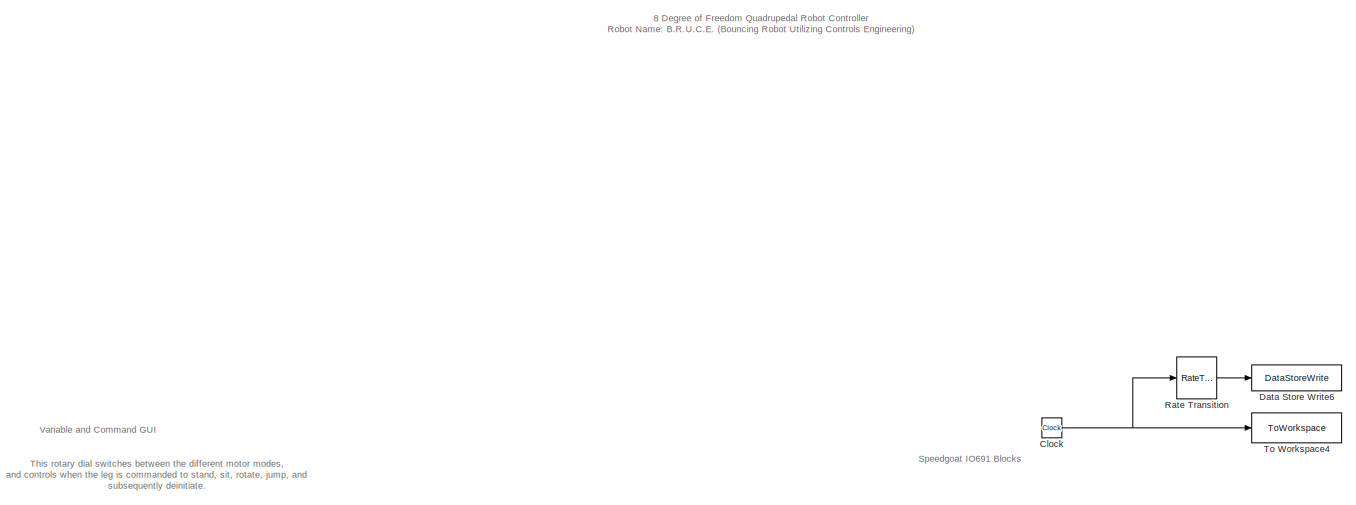
[diagram: root canvas - part 1/4, top left region]
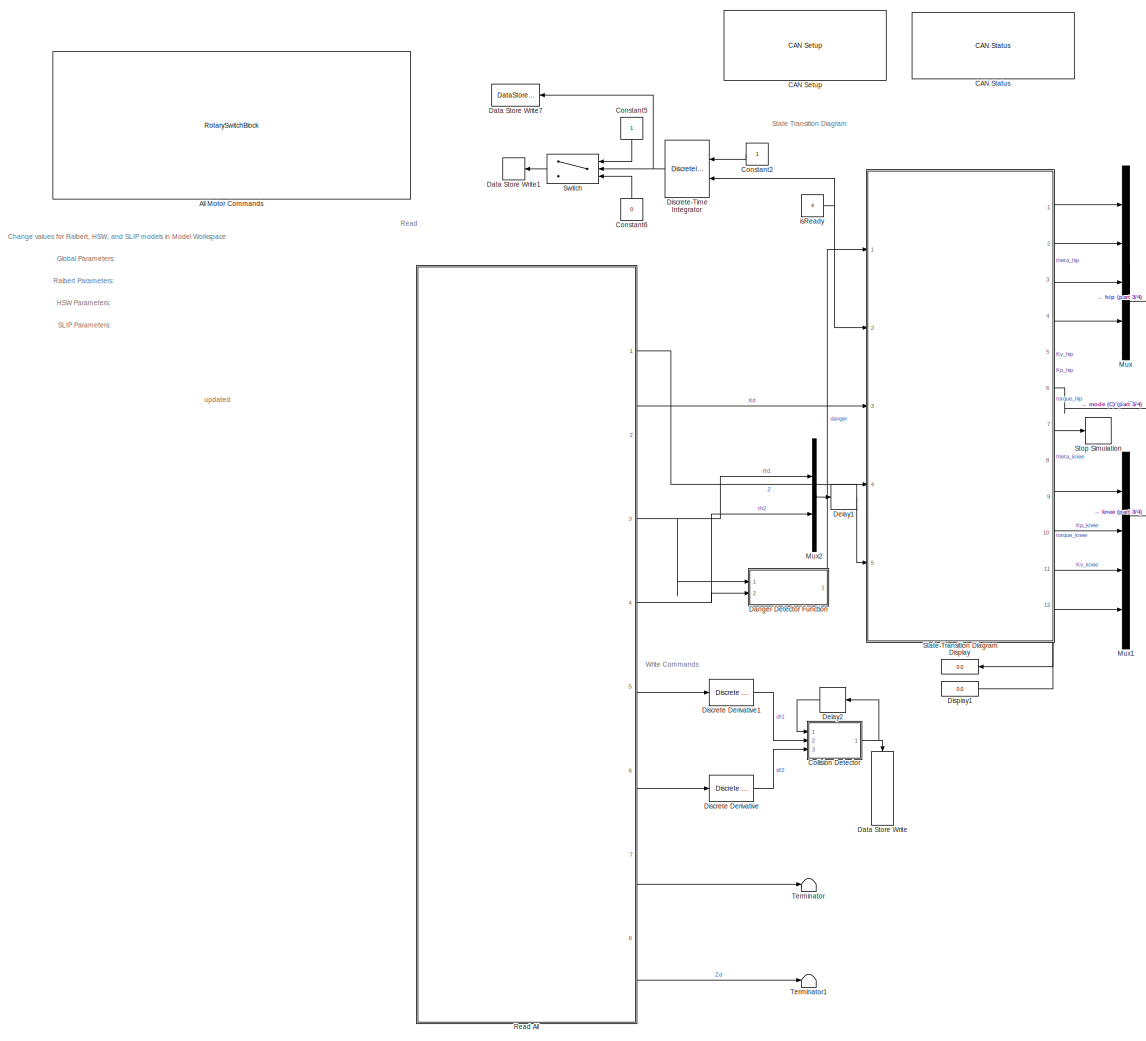
[diagram: root canvas - part 2/4, left side, full height]
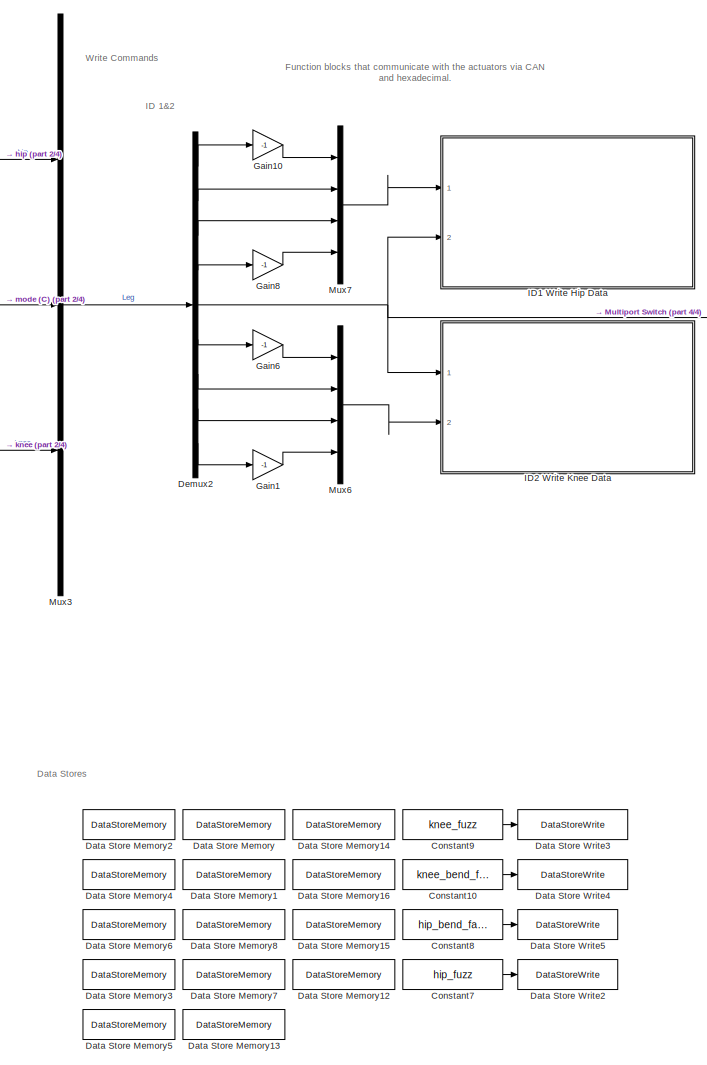
[diagram: root canvas - part 3/4, bottom center region]
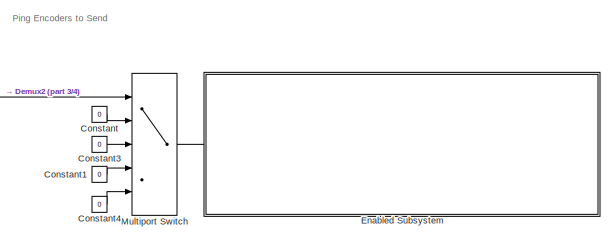
[diagram: root canvas - part 4/4, middle right region]
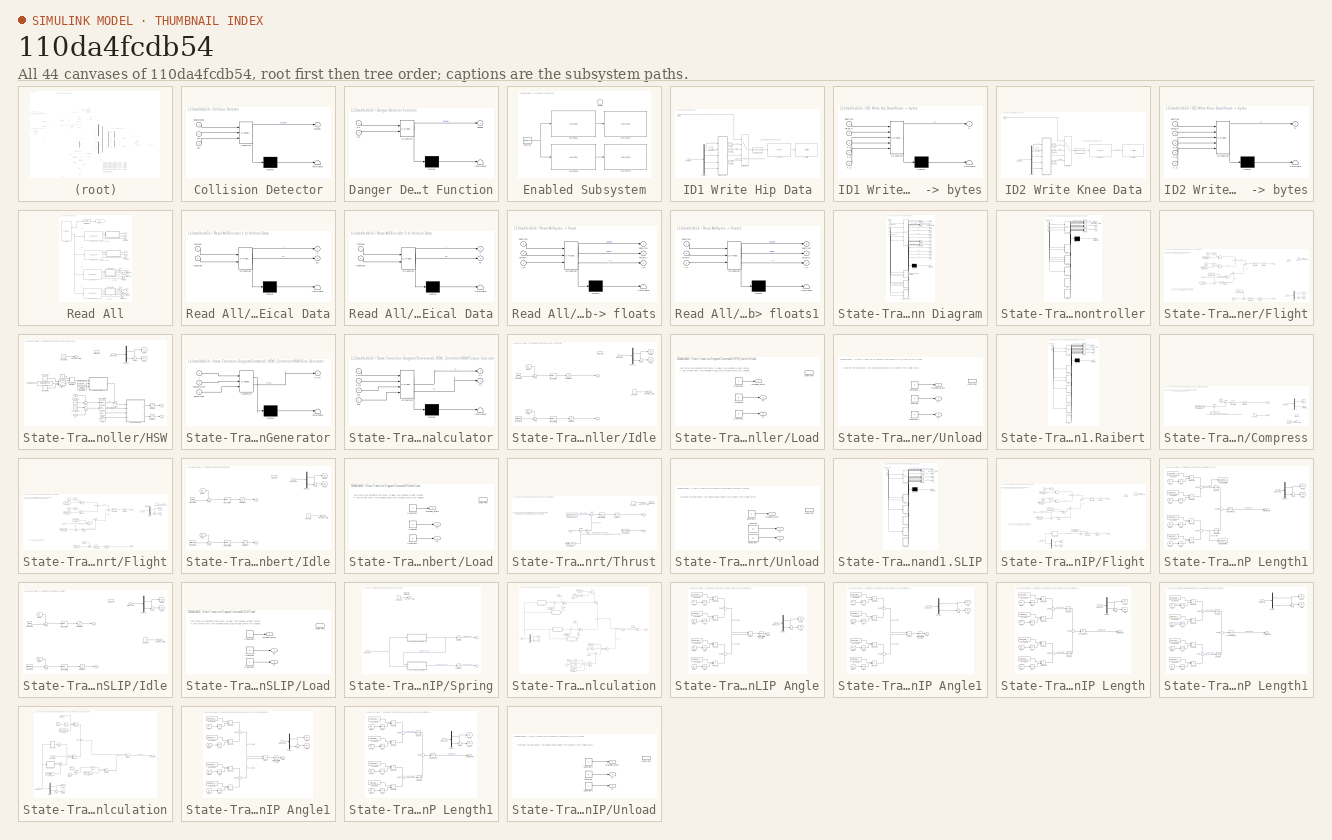
[diagram: thumbnail index - all 44 canvases of the model, root first then tree order]
MODEL slx_110da4fcdb54
KIND model
CONFIG AbsTol = auto
CONFIG EnableMultiTasking = off
CONFIG FixedStep = .005
CONFIG MaxStep = auto
CONFIG MinStep = auto
CONFIG RelTol = 1e-3
CONFIG SampleTimeConstraint = Unconstrained
CONFIG SolverName = FixedStepAuto
CONFIG StartTime = 0.0
CONFIG StopTime = inf
WORKSPACE source: mxarray member
WORKSPACE CPR = 10000
WORKSPACE amplitude = 0
WORKSPACE contactTime = 0
WORKSPACE desired_speed = 0
WORKSPACE equilibrium_length = 0
WORKSPACE h = 0.35
WORKSPACE hip_bend_factor = 0
WORKSPACE hip_fuzz = 0
WORKSPACE initHip = 0.523598775598
WORKSPACE initKnee = -1.0471975512
WORKSPACE k_landing_angle = 0
WORKSPACE k_slip = 0
WORKSPACE knee_bend_factor = 0
WORKSPACE knee_fuzz = 0
WORKSPACE lower_leg_length = 0.15
WORKSPACE max_torque = 8
WORKSPACE r = 1.35
WORKSPACE sample_time = [0 1]
WORKSPACE upper_leg_length = 0.15
WORKSPACE v_des = 0
WORKSPACE z_des = 0
BLOCK [RotarySwitchBlock] All Motor Commands
BLOCK [Reference] CAN Setup   REF=speedgoatlib_IO691/Legacy/CAN Setup 
  Ports = []
  SourceBlock = speedgoatlib_IO691/Legacy/CAN Setup
  SourceProductName = Simulink Real-Time: Speedgoat I/O Blockset
  SourceType = setup_IO691
BLOCK [Reference] CAN Status  REF=speedgoatlib_IO691/Legacy/CAN Status
  Ports = []
  SourceBlock = speedgoatlib_IO691/Legacy/CAN Status
  SourceProductName = Simulink Real-Time: Speedgoat I/O Blockset
  SourceType = status_IO691
  UserDataPersistent = on
BLOCK [Clock] Clock
BLOCK [SubSystem] Collision Detector
  ErrorFcn = Stateflow.Translate.translate
  PermitHierarchicalResolution = ExplicitOnly
  Ports = [3, 1]
  RequestExecContextInheritance = off
  SFBlockType = MATLAB Function
  TreatAsAtomicUnit = on
BLOCK [Demux] Collision Detector/ Demux 
  Outputs = 1
  Ports = [1, 1]
BLOCK [S-Function] Collision Detector/ SFunction 
  EnableBusSupport = on
  FunctionName = sf_sfun
  PortCounts = [3 2]
  Ports = [3, 2]
  SFcnIsStateOwnerBlock = off
  SFunctionDeploymentMode = off
  Tag = Stateflow S-Function 10
BLOCK [Terminator] Collision Detector/ Terminator 
BLOCK [Inport] Collision Detector/dI1
  Port = 2
BLOCK [Inport] Collision Detector/dI2
  Port = 3
BLOCK [Outport] Collision Detector/ground
BLOCK [Inport] Collision Detector/pastground
BLOCK [Constant] Constant
  Value = 0
BLOCK [Constant] Constant1
  Value = 0
BLOCK [Constant] Constant10
  Value = knee_bend_factor
BLOCK [Constant] Constant2
  NameLocation = top
BLOCK [Constant] Constant3
  Value = 0
BLOCK [Constant] Constant4
  Value = 0
BLOCK [Constant] Constant5
  NameLocation = left
BLOCK [Constant] Constant6
  NameLocation = right
  Value = 0
BLOCK [Constant] Constant7
  Value = hip_fuzz
BLOCK [Constant] Constant8
  Value = hip_bend_factor
BLOCK [Constant] Constant9
  Value = knee_fuzz
BLOCK [SubSystem] Danger Detector Function
  ErrorFcn = Stateflow.Translate.translate
  PermitHierarchicalResolution = ExplicitOnly
  Ports = [2, 1]
  RequestExecContextInheritance = off
  SFBlockType = MATLAB Function
  TreatAsAtomicUnit = on
BLOCK [Demux] Danger Detector Function/ Demux 
  Outputs = 1
  Ports = [1, 1]
BLOCK [S-Function] Danger Detector Function/ SFunction 
  EnableBusSupport = on
  FunctionName = sf_sfun
  PortCounts = [2 2]
  Ports = [2, 2]
  SFcnIsStateOwnerBlock = off
  SFunctionDeploymentMode = off
  Tag = Stateflow S-Function 6
BLOCK [Terminator] Danger Detector Function/ Terminator 
BLOCK [Inport] Danger Detector Function/P1
BLOCK [Inport] Danger Detector Function/P2
  Port = 2
BLOCK [Outport] Danger Detector Function/danger
BLOCK [DataStoreMemory] Data Store Memory
  DataStoreName = Simscape_Transitions
  Dimensions = 1
  OutDataTypeStr = boolean
  ShowAdditionalParam = off
  SignalType = real
  WriteAfterWriteMsg = warning
BLOCK [DataStoreMemory] Data Store Memory1
  DataStoreName = Hip_Impact_Angle
  OutDataTypeStr = double
  ShowAdditionalParam = off
  SignalType = real
  WriteAfterWriteMsg = warning
BLOCK [DataStoreMemory] Data Store Memory12
  DataStoreName = Knee_Impact_Angle
  OutDataTypeStr = double
  ShowAdditionalParam = off
  SignalType = real
  WriteAfterWriteMsg = warning
BLOCK [DataStoreMemory] Data Store Memory13
  DataStoreName = hip_range
  OutDataTypeStr = double
  ShowAdditionalParam = off
  SignalType = real
  WriteAfterWriteMsg = warning
BLOCK [DataStoreMemory] Data Store Memory14
  DataStoreName = knee_range
  OutDataTypeStr = double
  ShowAdditionalParam = off
  SignalType = real
  WriteAfterWriteMsg = warning
BLOCK [DataStoreMemory] Data Store Memory15
  DataStoreName = hip_bend_factor
  OutDataTypeStr = double
  ShowAdditionalParam = off
  SignalType = real
  WriteAfterWriteMsg = warning
BLOCK [DataStoreMemory] Data Store Memory16
  DataStoreName = knee_bend_factor
  OutDataTypeStr = double
  ShowAdditionalParam = off
  SignalType = real
  WriteAfterWriteMsg = warning
BLOCK [DataStoreMemory] Data Store Memory2
  DataStoreName = foot_y_flight
  OutDataTypeStr = double
  ShowAdditionalParam = off
  SignalType = real
  WriteAfterWriteMsg = warning
BLOCK [DataStoreMemory] Data Store Memory3
  DataStoreName = SLIP_impact_angle
  OutDataTypeStr = double
  ShowAdditionalParam = off
  SignalType = real
  WriteAfterWriteMsg = warning
BLOCK [DataStoreMemory] Data Store Memory4
  DataStoreName = foot_x_flight
  OutDataTypeStr = double
  ShowAdditionalParam = off
  SignalType = real
  WriteAfterWriteMsg = warning
BLOCK [DataStoreMemory] Data Store Memory5
  DataStoreName = contactTime
  OutDataTypeStr = double
  ShowAdditionalParam = off
  SignalType = real
  WriteAfterWriteMsg = warning
BLOCK [DataStoreMemory] Data Store Memory6
  DataStoreName = simTime
  OutDataTypeStr = double
  ShowAdditionalParam = off
  SignalType = real
  WriteAfterWriteMsg = warning
BLOCK [DataStoreMemory] Data Store Memory7
  DataStoreName = hasHopped
  OutDataTypeStr = double
  ShowAdditionalParam = off
  SignalType = real
  WriteAfterWriteMsg = warning
BLOCK [DataStoreMemory] Data Store Memory8
  DataStoreName = run
  OutDataTypeStr = double
  ShowAdditionalParam = off
  SignalType = real
  WriteAfterWriteMsg = warning
BLOCK [DataStoreWrite] Data Store Write
  DataStoreName = Simscape_Transitions
  IndexOptions = Index vector (dialog)
  Indices = 1
  NameLocation = left
  OutputSizes = 1
  Ports = [1]
BLOCK [DataStoreWrite] Data Store Write1
  DataStoreName = run
  IndexOptions = Index vector (dialog)
  Indices = 1
  NameLocation = top
  OutputSizes = 1
  Ports = [1]
BLOCK [DataStoreWrite] Data Store Write2
  DataStoreName = hip_range
  IndexOptions = Index vector (dialog)
  Indices = 1
  OutputSizes = 1
  Ports = [1]
BLOCK [DataStoreWrite] Data Store Write3
  DataStoreName = knee_range
  IndexOptions = Index vector (dialog)
  Indices = 1
  OutputSizes = 1
  Ports = [1]
BLOCK [DataStoreWrite] Data Store Write4
  DataStoreName = knee_bend_factor
  IndexOptions = Index vector (dialog)
  Indices = 1
  OutputSizes = 1
  Ports = [1]
BLOCK [DataStoreWrite] Data Store Write5
  DataStoreName = hip_bend_factor
  IndexOptions = Index vector (dialog)
  Indices = 1
  OutputSizes = 1
  Ports = [1]
BLOCK [DataStoreWrite] Data Store Write6
  DataStoreName = simTime
  IndexOptions = Index vector (dialog)
  Indices = 1
  OutputSizes = 1
  Ports = [1]
BLOCK [DataStoreWrite] Data Store Write7
  Commented = on
  DataStoreName = simTime
  IndexOptions = Index vector (dialog)
  Indices = 1
  NameLocation = top
  OutputSizes = 1
  Ports = [1]
BLOCK [Delay] Delay1
  DelayLength = 1
  InitialCondition = [0 0]
  InputPortMap = u0
  NameLocation = top
  Ports = [1, 1]
BLOCK [Delay] Delay2
  DelayLength = 1
  InitialCondition = true
  InputPortMap = u0
  Ports = [1, 1]
BLOCK [Demux] Demux2
  Outputs = 9
  Ports = [1, 9]
BLOCK [Reference] Discrete Derivative  REF=simulink/Discrete/Discrete Derivative
  Ports = [1, 1]
  SourceBlock = simulink/Discrete/Discrete Derivative
  SourceProductBaseCode = SL
  SourceType = Discrete Derivative
BLOCK [Reference] Discrete Derivative1  REF=simulink/Discrete/Discrete Derivative
  Ports = [1, 1]
  SourceBlock = simulink/Discrete/Discrete Derivative
  SourceProductBaseCode = SL
  SourceType = Discrete Derivative
BLOCK [DiscreteIntegrator] Discrete-Time Integrator
  ExternalReset = either
  ICPrevOutput = DiscIntNeverNeededParam
  ICPrevScaledInput = DiscIntNeverNeededParam
  InitialConditionSetting = Auto
  NameLocation = top
  Ports = [2, 1]
  SampleTime = -1
BLOCK [Display] Display
  Decimation = 1
  NameLocation = top
  Ports = [1]
BLOCK [Display] Display1
  Decimation = 1
  Ports = [1]
BLOCK [SubSystem] Enabled Subsystem
  NameLocation = right
  Ports = [0, 0, 1]
  RequestExecContextInheritance = off
  TreatAsAtomicUnit = on
BLOCK [Reference] Enabled Subsystem/CAN Pack1  REF=canmsglib/CAN Pack
  Ports = [1, 1]
  SourceBlock = canmsglib/CAN Pack
  SourceProductBaseCode = XP,ME,VN
  SourceType = CAN Pack
BLOCK [Reference] Enabled Subsystem/CAN Pack2  REF=canmsglib/CAN Pack
  Ports = [1, 1]
  SourceBlock = canmsglib/CAN Pack
  SourceProductBaseCode = XP,ME,VN
  SourceType = CAN Pack
BLOCK [Reference] Enabled Subsystem/CAN Write1  REF=speedgoatlib_IO691/Legacy/CAN Write
  Ports = [1]
  SourceBlock = speedgoatlib_IO691/Legacy/CAN Write
  SourceProductName = Simulink Real-Time: Speedgoat I/O Blockset
  SourceType = write_IO691
BLOCK [Reference] Enabled Subsystem/CAN Write2  REF=speedgoatlib_IO691/Legacy/CAN Write
  Ports = [1]
  SourceBlock = speedgoatlib_IO691/Legacy/CAN Write
  SourceProductName = Simulink Real-Time: Speedgoat I/O Blockset
  SourceType = write_IO691
BLOCK [Constant] Enabled Subsystem/Constant
  Value = uint8(1)
BLOCK [EnablePort] Enabled Subsystem/Enable
  Ports = []
BLOCK [Gain] Gain1
  Gain = -1
BLOCK [Gain] Gain10
  Gain = -1
BLOCK [Gain] Gain6
  Gain = -1
BLOCK [Gain] Gain8
  Gain = -1
BLOCK [SubSystem] ID1 Write Hip Data
  NameLocation = top
  Ports = [2]
  RequestExecContextInheritance = off
  TreatAsAtomicUnit = on
BLOCK [Reference] ID1 Write Hip Data/Byte Packing  REF=slrealtimeutilitieslib/Byte Packing
  Ports = [1, 1]
  SourceBlock = slrealtimeutilitieslib/Byte Packing
  SourceProductBaseCode = XP
  SourceType = slrealtimebytepacking
BLOCK [Reference] ID1 Write Hip Data/CAN Pack1  REF=canmsglib/CAN Pack
  Ports = [1, 1]
  SourceBlock = canmsglib/CAN Pack
  SourceProductBaseCode = XP,ME,VN
  SourceType = CAN Pack
BLOCK [Reference] ID1 Write Hip Data/CAN Write1  REF=speedgoatlib_IO691/Legacy/CAN Write
  Ports = [1]
  SourceBlock = speedgoatlib_IO691/Legacy/CAN Write
  SourceProductName = Simulink Real-Time: Speedgoat I/O Blockset
  SourceType = write_IO691
BLOCK [Inport] ID1 Write Hip Data/Command
BLOCK [Constant] ID1 Write Hip Data/Constant
  Value = [0xFF, 0xFF, 0xFF, 0xFF, 0xFF, 0xFF, 0xFF, 0xFE]
BLOCK [Constant] ID1 Write Hip Data/Constant1
  Value = [0xFF, 0xFF, 0xFF, 0xFF, 0xFF, 0xFF, 0xFF, 0xFC]
BLOCK [Constant] ID1 Write Hip Data/Constant2
  Value = [0xFF, 0xFF, 0xFF, 0xFF, 0xFF, 0xFF, 0xFF, 0xFD]
BLOCK [Constant] ID1 Write Hip Data/Constant3
  Value = 0
BLOCK [Demux] ID1 Write Hip Data/Demux
  Ports = [1, 4]
BLOCK [Inport] ID1 Write Hip Data/Mode
  Port = 2
BLOCK [MultiPortSwitch] ID1 Write Hip Data/Multiport Switch
  DiagnosticForDefault = None
  InputSameDT = off
  Inputs = 4
  Ports = [5, 1]
  SaturateOnIntegerOverflow = off
BLOCK [SubSystem] ID1 Write Hip Data/floats -> bytes
  ErrorFcn = Stateflow.Translate.translate
  PermitHierarchicalResolution = ExplicitOnly
  Ports = [5, 1]
  RequestExecContextInheritance = off
  SFBlockType = MATLAB Function
  TreatAsAtomicUnit = on
BLOCK [Demux] ID1 Write Hip Data/floats -> bytes/ Demux 
  Outputs = 1
  Ports = [1, 1]
BLOCK [S-Function] ID1 Write Hip Data/floats -> bytes/ SFunction 
  EnableBusSupport = on
  FunctionName = sf_sfun
  PortCounts = [5 2]
  Ports = [5, 2]
  SFcnIsStateOwnerBlock = off
  SFunctionDeploymentMode = off
  Tag = Stateflow S-Function 14
BLOCK [Terminator] ID1 Write Hip Data/floats -> bytes/ Terminator 
BLOCK [Inport] ID1 Write Hip Data/floats -> bytes/K_d
  Port = 4
BLOCK [Inport] ID1 Write Hip Data/floats -> bytes/K_p
  Port = 3
BLOCK [Inport] ID1 Write Hip Data/floats -> bytes/T_ff
  Port = 5
BLOCK [Outport] ID1 Write Hip Data/floats -> bytes/b
BLOCK [Inport] ID1 Write Hip Data/floats -> bytes/position
BLOCK [Inport] ID1 Write Hip Data/floats -> bytes/velocity
  Port = 2
BLOCK [SubSystem] ID2 Write Knee Data
  Ports = [2]
  RequestExecContextInheritance = off
  TreatAsAtomicUnit = on
BLOCK [Reference] ID2 Write Knee Data/Byte Packing  REF=slrealtimeutilitieslib/Byte Packing
  Ports = [1, 1]
  SourceBlock = slrealtimeutilitieslib/Byte Packing
  SourceProductBaseCode = XP
  SourceType = slrealtimebytepacking
BLOCK [Reference] ID2 Write Knee Data/CAN Pack1  REF=canmsglib/CAN Pack
  Ports = [1, 1]
  SourceBlock = canmsglib/CAN Pack
  SourceProductBaseCode = XP,ME,VN
  SourceType = CAN Pack
BLOCK [Reference] ID2 Write Knee Data/CAN Write1  REF=speedgoatlib_IO691/Legacy/CAN Write
  Ports = [1]
  SourceBlock = speedgoatlib_IO691/Legacy/CAN Write
  SourceProductName = Simulink Real-Time: Speedgoat I/O Blockset
  SourceType = write_IO691
BLOCK [Inport] ID2 Write Knee Data/Command
  Port = 2
BLOCK [Constant] ID2 Write Knee Data/Constant
  Value = [0xFF, 0xFF, 0xFF, 0xFF, 0xFF, 0xFF, 0xFF, 0xFE]
BLOCK [Constant] ID2 Write Knee Data/Constant1
  Value = [0xFF, 0xFF, 0xFF, 0xFF, 0xFF, 0xFF, 0xFF, 0xFC]
BLOCK [Constant] ID2 Write Knee Data/Constant2
  Value = [0xFF, 0xFF, 0xFF, 0xFF, 0xFF, 0xFF, 0xFF, 0xFD]
BLOCK [Constant] ID2 Write Knee Data/Constant3
  Value = 0
BLOCK [Demux] ID2 Write Knee Data/Demux
  Ports = [1, 4]
BLOCK [Inport] ID2 Write Knee Data/Mode
BLOCK [MultiPortSwitch] ID2 Write Knee Data/Multiport Switch
  DiagnosticForDefault = None
  InputSameDT = off
  Inputs = 4
  Ports = [5, 1]
  SaturateOnIntegerOverflow = off
BLOCK [SubSystem] ID2 Write Knee Data/floats -> bytes
  ErrorFcn = Stateflow.Translate.translate
  PermitHierarchicalResolution = ExplicitOnly
  Ports = [5, 1]
  RequestExecContextInheritance = off
  SFBlockType = MATLAB Function
  TreatAsAtomicUnit = on
BLOCK [Demux] ID2 Write Knee Data/floats -> bytes/ Demux 
  Outputs = 1
  Ports = [1, 1]
BLOCK [S-Function] ID2 Write Knee Data/floats -> bytes/ SFunction 
  EnableBusSupport = on
  FunctionName = sf_sfun
  PortCounts = [5 2]
  Ports = [5, 2]
  SFcnIsStateOwnerBlock = off
  SFunctionDeploymentMode = off
  Tag = Stateflow S-Function 13
BLOCK [Terminator] ID2 Write Knee Data/floats -> bytes/ Terminator 
BLOCK [Inport] ID2 Write Knee Data/floats -> bytes/K_d
  Port = 4
BLOCK [Inport] ID2 Write Knee Data/floats -> bytes/K_p
  Port = 3
BLOCK [Inport] ID2 Write Knee Data/floats -> bytes/T_ff
  Port = 5
BLOCK [Outport] ID2 Write Knee Data/floats -> bytes/b
BLOCK [Inport] ID2 Write Knee Data/floats -> bytes/position
BLOCK [Inport] ID2 Write Knee Data/floats -> bytes/velocity
  Port = 2
BLOCK [MultiPortSwitch] Multiport Switch
  DiagnosticForDefault = None
  InputSameDT = off
  Inputs = 4
  Ports = [5, 1]
  SaturateOnIntegerOverflow = off
BLOCK [Mux] Mux
  DisplayOption = bar
  Ports = [4, 1]
BLOCK [Mux] Mux1
  DisplayOption = bar
  Ports = [4, 1]
BLOCK [Mux] Mux2
  DisplayOption = bar
  Inputs = 2
  Ports = [2, 1]
BLOCK [Mux] Mux3
  DisplayOption = bar
  Inputs = 3
  Ports = [3, 1]
BLOCK [Mux] Mux6
  DisplayOption = bar
  Ports = [4, 1]
BLOCK [Mux] Mux7
  DisplayOption = bar
  Ports = [4, 1]
BLOCK [RateTransition] Rate Transition
BLOCK [SubSystem] Read All
  NameLocation = top
  Ports = [0, 8]
  RequestExecContextInheritance = off
  TreatAsAtomicUnit = on
BLOCK [Reference] Read All/CAN Read  REF=speedgoatlib_IO691/Legacy/CAN Read
  Ports = [0, 2]
  SourceBlock = speedgoatlib_IO691/Legacy/CAN Read
  SourceProductName = Simulink Real-Time: Speedgoat I/O Blockset
  SourceType = read_IO691
BLOCK [Reference] Read All/CAN Unpack  REF=canmsglib/CAN Unpack
  Ports = [1, 5]
  SourceBlock = canmsglib/CAN Unpack
  SourceProductBaseCode = XP,ME,VN
  SourceType = CAN Unpack
BLOCK [Reference] Read All/CAN Unpack1  REF=canmsglib/CAN Unpack
  Ports = [1, 3]
  SourceBlock = canmsglib/CAN Unpack
  SourceProductBaseCode = XP,ME,VN
  SourceType = CAN Unpack
BLOCK [Reference] Read All/CAN Unpack2  REF=canmsglib/CAN Unpack
  Ports = [1, 3]
  SourceBlock = canmsglib/CAN Unpack
  SourceProductBaseCode = XP,ME,VN
  SourceType = CAN Unpack
BLOCK [Reference] Read All/CAN Unpack3  REF=canmsglib/CAN Unpack
  Ports = [1, 5]
  SourceBlock = canmsglib/CAN Unpack
  SourceProductBaseCode = XP,ME,VN
  SourceType = CAN Unpack
BLOCK [Display] Read All/Display
  Decimation = 1
  Ports = [1]
BLOCK [SubSystem] Read All/Encoder 1 to Vertical Data
  ErrorFcn = Stateflow.Translate.translate
  NameLocation = top
  PermitHierarchicalResolution = ExplicitOnly
  Ports = [2, 2]
  RequestExecContextInheritance = off
  SFBlockType = MATLAB Function
  TreatAsAtomicUnit = on
BLOCK [Demux] Read All/Encoder 1 to Vertical Data/ Demux 
  Outputs = 1
  Ports = [1, 1]
BLOCK [S-Function] Read All/Encoder 1 to Vertical Data/ SFunction 
  EnableBusSupport = on
  FunctionName = sf_sfun
  Parameters = CPR,h,r
  PortCounts = [2 3]
  Ports = [2, 3]
  SFcnIsStateOwnerBlock = off
  SFunctionDeploymentMode = off
  Tag = Stateflow S-Function 2
BLOCK [Terminator] Read All/Encoder 1 to Vertical Data/ Terminator 
BLOCK [Inport] Read All/Encoder 1 to Vertical Data/th1Raw
BLOCK [Inport] Read All/Encoder 1 to Vertical Data/thd1Raw
  Port = 2
BLOCK [Outport] Read All/Encoder 1 to Vertical Data/z
BLOCK [Outport] Read All/Encoder 1 to Vertical Data/zd
  Port = 2
BLOCK [SubSystem] Read All/Encoder 2 to Vertical Data
  ErrorFcn = Stateflow.Translate.translate
  NameLocation = top
  PermitHierarchicalResolution = ExplicitOnly
  Ports = [2, 2]
  RequestExecContextInheritance = off
  SFBlockType = MATLAB Function
  TreatAsAtomicUnit = on
BLOCK [Demux] Read All/Encoder 2 to Vertical Data/ Demux 
  Outputs = 1
  Ports = [1, 1]
BLOCK [S-Function] Read All/Encoder 2 to Vertical Data/ SFunction 
  EnableBusSupport = on
  FunctionName = sf_sfun
  Parameters = CPR,r
  PortCounts = [2 3]
  Ports = [2, 3]
  SFcnIsStateOwnerBlock = off
  SFunctionDeploymentMode = off
  Tag = Stateflow S-Function 1
BLOCK [Terminator] Read All/Encoder 2 to Vertical Data/ Terminator 
BLOCK [Inport] Read All/Encoder 2 to Vertical Data/th2Raw
BLOCK [Inport] Read All/Encoder 2 to Vertical Data/thd2Raw
  Port = 2
BLOCK [Outport] Read All/Encoder 2 to Vertical Data/x
BLOCK [Outport] Read All/Encoder 2 to Vertical Data/xd
  Port = 2
BLOCK [Gain] Read All/Gain
  Gain = -1
BLOCK [Gain] Read All/Gain2
  Gain = -1
BLOCK [Outport] Read All/I1
  Port = 5
BLOCK [Outport] Read All/I2
  Port = 6
BLOCK [Terminator] Read All/Terminator
BLOCK [Terminator] Read All/Terminator1
BLOCK [Terminator] Read All/Terminator2
BLOCK [Terminator] Read All/Terminator3
BLOCK [Terminator] Read All/Terminator4
BLOCK [Terminator] Read All/Terminator5
BLOCK [Terminator] Read All/Terminator6
BLOCK [Terminator] Read All/Terminator7
BLOCK [WhileIterator] Read All/While Iterator
  MaxIters = -1
  Ports = [1, 1]
  ResetStates = reset
  ShowIterationPort = on
  WhileBlockType = do-while
BLOCK [Outport] Read All/X
  Port = 7
BLOCK [Outport] Read All/Xd
  Port = 2
BLOCK [Outport] Read All/Z
BLOCK [Outport] Read All/Zd
  Port = 8
BLOCK [SubSystem] Read All/bytes -> floats
  ErrorFcn = Stateflow.Translate.translate
  NameLocation = top
  PermitHierarchicalResolution = ExplicitOnly
  Ports = [3, 3]
  RequestExecContextInheritance = off
  SFBlockType = MATLAB Function
  TreatAsAtomicUnit = on
BLOCK [Demux] Read All/bytes -> floats/ Demux 
  Outputs = 1
  Ports = [1, 1]
BLOCK [S-Function] Read All/bytes -> floats/ SFunction 
  EnableBusSupport = on
  FunctionName = sf_sfun
  PortCounts = [3 4]
  Ports = [3, 4]
  SFcnIsStateOwnerBlock = off
  SFunctionDeploymentMode = off
  Tag = Stateflow S-Function 11
BLOCK [Terminator] Read All/bytes -> floats/ Terminator 
BLOCK [Outport] Read All/bytes -> floats/I_ff
  Port = 3
BLOCK [Inport] Read All/bytes -> floats/I_ff 
  Port = 3
BLOCK [Outport] Read All/bytes -> floats/position
BLOCK [Inport] Read All/bytes -> floats/position 
BLOCK [Outport] Read All/bytes -> floats/velocity
  Port = 2
BLOCK [Inport] Read All/bytes -> floats/velocity 
  Port = 2
BLOCK [SubSystem] Read All/bytes -> floats1
  ErrorFcn = Stateflow.Translate.translate
  NameLocation = top
  PermitHierarchicalResolution = ExplicitOnly
  Ports = [3, 3]
  RequestExecContextInheritance = off
  SFBlockType = MATLAB Function
  TreatAsAtomicUnit = on
BLOCK [Demux] Read All/bytes -> floats1/ Demux 
  Outputs = 1
  Ports = [1, 1]
BLOCK [S-Function] Read All/bytes -> floats1/ SFunction 
  EnableBusSupport = on
  FunctionName = sf_sfun
  PortCounts = [3 4]
  Ports = [3, 4]
  SFcnIsStateOwnerBlock = off
  SFunctionDeploymentMode = off
  Tag = Stateflow S-Function 15
BLOCK [Terminator] Read All/bytes -> floats1/ Terminator 
BLOCK [Outport] Read All/bytes -> floats1/I_ff
  Port = 3
BLOCK [Inport] Read All/bytes -> floats1/I_ff 
  Port = 3
BLOCK [Outport] Read All/bytes -> floats1/position
BLOCK [Inport] Read All/bytes -> floats1/position 
BLOCK [Outport] Read All/bytes -> floats1/velocity
  Port = 2
BLOCK [Inport] Read All/bytes -> floats1/velocity 
  Port = 2
BLOCK [Outport] Read All/th1
  Port = 3
BLOCK [Outport] Read All/th2
  Port = 4
BLOCK [SubSystem] State-Transition Diagram
  ErrorFcn = Stateflow.Translate.translate
  PermitHierarchicalResolution = ExplicitOnly
  PortSchema = {"entries":[{"content":{"sides":[{"content":{"connectorIds":["In2","In4","In3","In5","In1"]},"type":"ConnectorPlacement.EquallySpacedRectSide","uuid":"09499f21-f50c-4ce4-914e-8b9942bcc246"},{"content":{"connectorIds":["Out4","Out9","Out11","Out7","Out6","Out3","Out5","Out10","Out12","Out8"],"side":"RIGHT"},"type":"ConnectorPlacement.EquallySpacedRectSide","uuid":"b935e908-ace3-4dfb-ad6d-08dfed6ffd...<+487ch>
  Ports = [5, 12]
  RequestExecContextInheritance = off
  SFBlockType = Chart
  TreatAsAtomicUnit = on
BLOCK [Demux] State-Transition Diagram/ Demux 
  Outputs = 1
  Ports = [1, 1]
BLOCK [Merge] State-Transition Diagram/ Merge 
  Inputs = 4
  Ports = [4, 1]
BLOCK [Merge] State-Transition Diagram/ Merge 1
  Inputs = 4
  Ports = [4, 1]
BLOCK [Merge] State-Transition Diagram/ Merge 2
  Inputs = 4
  Ports = [4, 1]
BLOCK [Merge] State-Transition Diagram/ Merge 3
  Ports = [2, 1]
BLOCK [S-Function] State-Transition Diagram/ SFunction 
  EnableBusSupport = on
  FunctionName = sf_sfun
  Parameters = initHip,initKnee
  PortCounts = [5 13]
  Ports = [5, 13]
  SFcnIsStateOwnerBlock = off
  SFunctionDeploymentMode = off
  Tag = Stateflow S-Function 8
BLOCK [Terminator] State-Transition Diagram/ Terminator 
BLOCK [SubSystem] State-Transition Diagram/Command1.HSW_Controller
  CopyFcn = set_param(gcbh, 'DSMNames', '', 'DSMValues', '', 'CopyFcn', '')
  DSMNames = SLIP_impact_angle,Simscape_Transitions,contactTime,foot_x_flight,foot_y_flight,hasHopped,run,simTime
  DSMValues = SLIP_impact_angle,Simscape_Transitions,contactTime,foot_x_flight,foot_y_flight,hasHopped,run,simTime
  ErrorFcn = Stateflow.Translate.translate
  PermitHierarchicalResolution = ExplicitOnly
  Ports = [3, 3]
  RequestExecContextInheritance = off
  SFBlockType = Chart
  TreatAsAtomicUnit = on
BLOCK [Demux] State-Transition Diagram/Command1.HSW_Controller/ Demux 
  Outputs = 1
  Ports = [1, 1]
BLOCK [Merge] State-Transition Diagram/Command1.HSW_Controller/ Merge 
  Inputs = 6
  Ports = [6, 1]
BLOCK [Merge] State-Transition Diagram/Command1.HSW_Controller/ Merge 1
  Inputs = 6
  Ports = [6, 1]
BLOCK [Merge] State-Transition Diagram/Command1.HSW_Controller/ Merge 2
  Inputs = 6
  Ports = [6, 1]
BLOCK [S-Function] State-Transition Diagram/Command1.HSW_Controller/ SFunction 
  EnableBusSupport = off
  FunctionName = sf_sfun
  PortCounts = [3 4]
  Ports = [3, 4]
  SFcnIsStateOwnerBlock = off
  SFunctionDeploymentMode = off
  Tag = Stateflow S-Function 5
BLOCK [Terminator] State-Transition Diagram/Command1.HSW_Controller/ Terminator 
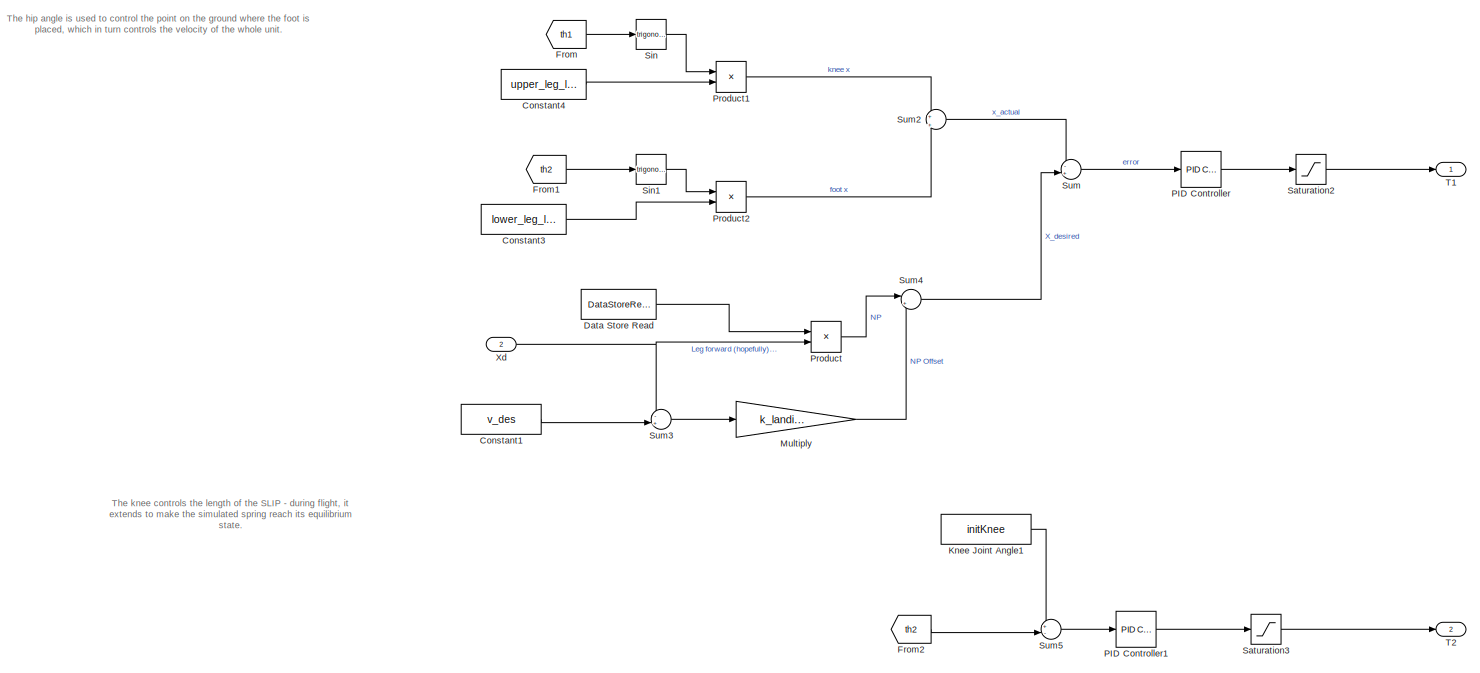
[diagram: State-Transition Diagram/Command1.HSW_Controller/Flight - part 1/3, most of the canvas]
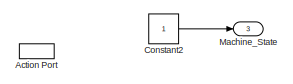
[diagram: State-Transition Diagram/Command1.HSW_Controller/Flight - part 2/3, top right region]
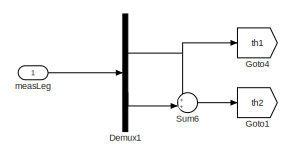
[diagram: State-Transition Diagram/Command1.HSW_Controller/Flight - part 3/3, bottom right region]
BLOCK [SubSystem] State-Transition Diagram/Command1.HSW_Controller/Flight
  Ports = [2, 3, 0, 0, 0, 0, 0, 1]
  PreDeleteFcn = Stateflow.SLINSF.SimulinkMan.removePreDeleteFcn
  RequestExecContextInheritance = off
  UndoDeleteFcn = Stateflow.SLINSF.SimulinkMan.restorePreDeleteFcn
BLOCK [ActionPort] State-Transition Diagram/Command1.HSW_Controller/Flight/Action Port
  CopyFcn = Stateflow.SLINSF.SimulinkMan.removeBlockPreDeleteFcn
  PreDeleteFcn = Stateflow.SLINSF.SimulinkMan.unsafePredeleteFcn
BLOCK [Constant] State-Transition Diagram/Command1.HSW_Controller/Flight/Constant1
  Value = v_des
BLOCK [Constant] State-Transition Diagram/Command1.HSW_Controller/Flight/Constant2
BLOCK [Constant] State-Transition Diagram/Command1.HSW_Controller/Flight/Constant3
  Value = lower_leg_length
BLOCK [Constant] State-Transition Diagram/Command1.HSW_Controller/Flight/Constant4
  Value = upper_leg_length
BLOCK [DataStoreRead] State-Transition Diagram/Command1.HSW_Controller/Flight/Data Store Read
  DataStoreName = contactTime
  IndexOptions = Index vector (dialog)
  Indices = 1
  OutputSizes = 1
  Ports = [0, 1]
BLOCK [Demux] State-Transition Diagram/Command1.HSW_Controller/Flight/Demux1
  Outputs = 2
  Ports = [1, 2]
BLOCK [From] State-Transition Diagram/Command1.HSW_Controller/Flight/From
  GotoTag = th1
BLOCK [From] State-Transition Diagram/Command1.HSW_Controller/Flight/From1
  GotoTag = th2
BLOCK [From] State-Transition Diagram/Command1.HSW_Controller/Flight/From2
  GotoTag = th2
BLOCK [Goto] State-Transition Diagram/Command1.HSW_Controller/Flight/Goto1
  GotoTag = th2
BLOCK [Goto] State-Transition Diagram/Command1.HSW_Controller/Flight/Goto4
  GotoTag = th1
BLOCK [Constant] State-Transition Diagram/Command1.HSW_Controller/Flight/Knee Joint Angle1
  Value = initKnee
BLOCK [Outport] State-Transition Diagram/Command1.HSW_Controller/Flight/Machine_State
  Port = 3
BLOCK [Gain] State-Transition Diagram/Command1.HSW_Controller/Flight/Multiply
  Gain = k_landing_angle
BLOCK [Reference] State-Transition Diagram/Command1.HSW_Controller/Flight/PID Controller  REF=slpidlib/PID Controller
  Ports = [1, 1]
  SourceBlock = slpidlib/PID Controller
  SourceProductBaseCode = SL
  SourceType = PID 1dof
BLOCK [Reference] State-Transition Diagram/Command1.HSW_Controller/Flight/PID Controller1  REF=slpidlib/PID Controller
  Ports = [1, 1]
  SourceBlock = slpidlib/PID Controller
  SourceProductBaseCode = SL
  SourceType = PID 1dof
BLOCK [Product] State-Transition Diagram/Command1.HSW_Controller/Flight/Product
  Ports = [2, 1]
BLOCK [Product] State-Transition Diagram/Command1.HSW_Controller/Flight/Product1
  Ports = [2, 1]
BLOCK [Product] State-Transition Diagram/Command1.HSW_Controller/Flight/Product2
  Ports = [2, 1]
BLOCK [Saturate] State-Transition Diagram/Command1.HSW_Controller/Flight/Saturation2
  LowerLimit = -max_torque
  UpperLimit = max_torque
BLOCK [Saturate] State-Transition Diagram/Command1.HSW_Controller/Flight/Saturation3
  LowerLimit = -max_torque
  UpperLimit = max_torque
BLOCK [Trigonometry] State-Transition Diagram/Command1.HSW_Controller/Flight/Sin
  Ports = [1, 1]
BLOCK [Trigonometry] State-Transition Diagram/Command1.HSW_Controller/Flight/Sin1
  Ports = [1, 1]
BLOCK [Sum] State-Transition Diagram/Command1.HSW_Controller/Flight/Sum
  Inputs = -+|
  Ports = [2, 1]
BLOCK [Sum] State-Transition Diagram/Command1.HSW_Controller/Flight/Sum2
  Inputs = +|+
  Ports = [2, 1]
BLOCK [Sum] State-Transition Diagram/Command1.HSW_Controller/Flight/Sum3
  Inputs = -+|
  Ports = [2, 1]
BLOCK [Sum] State-Transition Diagram/Command1.HSW_Controller/Flight/Sum4
  Inputs = |++
  Ports = [2, 1]
BLOCK [Sum] State-Transition Diagram/Command1.HSW_Controller/Flight/Sum5
  Inputs = +-|
  Ports = [2, 1]
BLOCK [Sum] State-Transition Diagram/Command1.HSW_Controller/Flight/Sum6
  Inputs = ++|
  Ports = [2, 1]
BLOCK [Outport] State-Transition Diagram/Command1.HSW_Controller/Flight/T1
BLOCK [Outport] State-Transition Diagram/Command1.HSW_Controller/Flight/T2
  Port = 2
BLOCK [Inport] State-Transition Diagram/Command1.HSW_Controller/Flight/Xd
  Port = 2
BLOCK [Inport] State-Transition Diagram/Command1.HSW_Controller/Flight/measLeg
BLOCK [SubSystem] State-Transition Diagram/Command1.HSW_Controller/HSW
  Ports = [3, 3, 0, 0, 0, 0, 0, 1]
  PreDeleteFcn = Stateflow.SLINSF.SimulinkMan.removePreDeleteFcn
  RequestExecContextInheritance = off
  UndoDeleteFcn = Stateflow.SLINSF.SimulinkMan.restorePreDeleteFcn
BLOCK [ActionPort] State-Transition Diagram/Command1.HSW_Controller/HSW/Action Port
  CopyFcn = Stateflow.SLINSF.SimulinkMan.removeBlockPreDeleteFcn
  PreDeleteFcn = Stateflow.SLINSF.SimulinkMan.unsafePredeleteFcn
BLOCK [Constant] State-Transition Diagram/Command1.HSW_Controller/HSW/Constant
  Value = amplitude
BLOCK [Constant] State-Transition Diagram/Command1.HSW_Controller/HSW/Constant10
  Value = v_des
BLOCK [Constant] State-Transition Diagram/Command1.HSW_Controller/HSW/Constant2
  Value = 3
BLOCK [Constant] State-Transition Diagram/Command1.HSW_Controller/HSW/Constant5
  Value = z_des
BLOCK [Constant] State-Transition Diagram/Command1.HSW_Controller/HSW/Constant7
BLOCK [Constant] State-Transition Diagram/Command1.HSW_Controller/HSW/Constant8
BLOCK [Constant] State-Transition Diagram/Command1.HSW_Controller/HSW/Constant9
  Value = 0
BLOCK [DataStoreRead] State-Transition Diagram/Command1.HSW_Controller/HSW/Data Store Read
  DataStoreName = Simscape_Transitions
  IndexOptions = Index vector (dialog)
  Indices = 1
  OutputSizes = 1
  Ports = [0, 1]
BLOCK [DataStoreRead] State-Transition Diagram/Command1.HSW_Controller/HSW/Data Store Read1
  DataStoreName = contactTime
  IndexOptions = Index vector (dialog)
  Indices = 1
  OutputSizes = 1
  Ports = [0, 1]
BLOCK [Demux] State-Transition Diagram/Command1.HSW_Controller/HSW/Demux1
  Outputs = 2
  Ports = [1, 2]
BLOCK [DiscreteIntegrator] State-Transition Diagram/Command1.HSW_Controller/HSW/Discrete-Time Integrator
  ExternalReset = rising
  ICPrevOutput = DiscIntNeverNeededParam
  ICPrevScaledInput = DiscIntNeverNeededParam
  InitialConditionSetting = Auto
  Ports = [2, 1]
  SampleTime = -1
BLOCK [From] State-Transition Diagram/Command1.HSW_Controller/HSW/From1
  GotoTag = th1
BLOCK [From] State-Transition Diagram/Command1.HSW_Controller/HSW/From2
  GotoTag = th2
BLOCK [Goto] State-Transition Diagram/Command1.HSW_Controller/HSW/Goto1
  GotoTag = th2
BLOCK [Goto] State-Transition Diagram/Command1.HSW_Controller/HSW/Goto4
  GotoTag = th1
BLOCK [Outport] State-Transition Diagram/Command1.HSW_Controller/HSW/Machine_State
  Port = 3
  SampleTime = sample_time
BLOCK [Reference] State-Transition Diagram/Command1.HSW_Controller/HSW/PID Controller2  REF=slpidlib/PID Controller
  Ports = [1, 1]
  SourceBlock = slpidlib/PID Controller
  SourceProductBaseCode = SL
  SourceType = PID 1dof
BLOCK [Reference] State-Transition Diagram/Command1.HSW_Controller/HSW/PID Controller3  REF=slpidlib/PID Controller
  Ports = [1, 1]
  SourceBlock = slpidlib/PID Controller
  SourceProductBaseCode = SL
  SourceType = PID 1dof
BLOCK [Saturate] State-Transition Diagram/Command1.HSW_Controller/HSW/Saturation
  LowerLimit = -max_torque
  UpperLimit = max_torque
BLOCK [Saturate] State-Transition Diagram/Command1.HSW_Controller/HSW/Saturation1
  LowerLimit = -max_torque
  UpperLimit = max_torque
BLOCK [SubSystem] State-Transition Diagram/Command1.HSW_Controller/HSW/Sine Generator
  ErrorFcn = Stateflow.Translate.translate
  PermitHierarchicalResolution = ExplicitOnly
  Ports = [3, 1]
  RequestExecContextInheritance = off
  SFBlockType = MATLAB Function
  TreatAsAtomicUnit = on
BLOCK [Demux] State-Transition Diagram/Command1.HSW_Controller/HSW/Sine Generator/ Demux 
  Outputs = 1
  Ports = [1, 1]
BLOCK [S-Function] State-Transition Diagram/Command1.HSW_Controller/HSW/Sine Generator/ SFunction 
  EnableBusSupport = on
  FunctionName = sf_sfun
  PortCounts = [3 2]
  Ports = [3, 2]
  SFcnIsStateOwnerBlock = off
  SFunctionDeploymentMode = off
  Tag = Stateflow S-Function 7
BLOCK [Terminator] State-Transition Diagram/Command1.HSW_Controller/HSW/Sine Generator/ Terminator 
BLOCK [Outport] State-Transition Diagram/Command1.HSW_Controller/HSW/Sine Generator/HSW
BLOCK [Inport] State-Transition Diagram/Command1.HSW_Controller/HSW/Sine Generator/amplitude
  Port = 3
BLOCK [Inport] State-Transition Diagram/Command1.HSW_Controller/HSW/Sine Generator/contactTime
  Port = 2
BLOCK [Inport] State-Transition Diagram/Command1.HSW_Controller/HSW/Sine Generator/t
BLOCK [Sum] State-Transition Diagram/Command1.HSW_Controller/HSW/Sum
  Inputs = -+|
  Ports = [2, 1]
BLOCK [Sum] State-Transition Diagram/Command1.HSW_Controller/HSW/Sum2
  Inputs = |+-
  Ports = [2, 1]
BLOCK [Sum] State-Transition Diagram/Command1.HSW_Controller/HSW/Sum4
  Inputs = ++|
  Ports = [2, 1]
BLOCK [Sum] State-Transition Diagram/Command1.HSW_Controller/HSW/Sum6
  Inputs = ++|
  Ports = [2, 1]
BLOCK [Switch] State-Transition Diagram/Command1.HSW_Controller/HSW/Switch2
  Criteria = u2 > Threshold
  InputSameDT = off
  SaturateOnIntegerOverflow = off
BLOCK [Outport] State-Transition Diagram/Command1.HSW_Controller/HSW/T1
  SampleTime = sample_time
BLOCK [Outport] State-Transition Diagram/Command1.HSW_Controller/HSW/T2
  Port = 2
  SampleTime = sample_time
BLOCK [SubSystem] State-Transition Diagram/Command1.HSW_Controller/HSW/Torque Calculator
  ErrorFcn = Stateflow.Translate.translate
  PermitHierarchicalResolution = ExplicitOnly
  Ports = [4, 2]
  RequestExecContextInheritance = off
  SFBlockType = MATLAB Function
  TreatAsAtomicUnit = on
BLOCK [Demux] State-Transition Diagram/Command1.HSW_Controller/HSW/Torque Calculator/ Demux 
  Outputs = 1
  Ports = [1, 1]
BLOCK [S-Function] State-Transition Diagram/Command1.HSW_Controller/HSW/Torque Calculator/ SFunction 
  EnableBusSupport = on
  FunctionName = sf_sfun
  Parameters = lower_leg_length,upper_leg_length
  PortCounts = [4 3]
  Ports = [4, 3]
  SFcnIsStateOwnerBlock = off
  SFunctionDeploymentMode = off
  Tag = Stateflow S-Function 9
BLOCK [Terminator] State-Transition Diagram/Command1.HSW_Controller/HSW/Torque Calculator/ Terminator 
BLOCK [Inport] State-Transition Diagram/Command1.HSW_Controller/HSW/Torque Calculator/FGx
  Port = 2
BLOCK [Inport] State-Transition Diagram/Command1.HSW_Controller/HSW/Torque Calculator/FGy
BLOCK [Outport] State-Transition Diagram/Command1.HSW_Controller/HSW/Torque Calculator/T1
BLOCK [Outport] State-Transition Diagram/Command1.HSW_Controller/HSW/Torque Calculator/T2
  Port = 2
BLOCK [Inport] State-Transition Diagram/Command1.HSW_Controller/HSW/Torque Calculator/th1
  Port = 3
BLOCK [Inport] State-Transition Diagram/Command1.HSW_Controller/HSW/Torque Calculator/th2
  Port = 4
BLOCK [Inport] State-Transition Diagram/Command1.HSW_Controller/HSW/Xd
  Port = 2
  SampleTime = sample_time
BLOCK [Inport] State-Transition Diagram/Command1.HSW_Controller/HSW/Z
  Port = 3
  SampleTime = sample_time
BLOCK [Inport] State-Transition Diagram/Command1.HSW_Controller/HSW/measLeg
  SampleTime = sample_time
BLOCK [SubSystem] State-Transition Diagram/Command1.HSW_Controller/Idle
  Ports = [1, 3, 0, 0, 0, 0, 0, 1]
  PreDeleteFcn = Stateflow.SLINSF.SimulinkMan.removePreDeleteFcn
  RequestExecContextInheritance = off
  UndoDeleteFcn = Stateflow.SLINSF.SimulinkMan.restorePreDeleteFcn
BLOCK [ActionPort] State-Transition Diagram/Command1.HSW_Controller/Idle/Action Port
  CopyFcn = Stateflow.SLINSF.SimulinkMan.removeBlockPreDeleteFcn
  PreDeleteFcn = Stateflow.SLINSF.SimulinkMan.unsafePredeleteFcn
BLOCK [Constant] State-Transition Diagram/Command1.HSW_Controller/Idle/Constant
  Value = 0
BLOCK [Constant] State-Transition Diagram/Command1.HSW_Controller/Idle/Constant1
  Value = initKnee
BLOCK [Constant] State-Transition Diagram/Command1.HSW_Controller/Idle/Constant2
  Value = initHip
BLOCK [Demux] State-Transition Diagram/Command1.HSW_Controller/Idle/Demux1
  Outputs = 2
  Ports = [1, 2]
BLOCK [From] State-Transition Diagram/Command1.HSW_Controller/Idle/From
  GotoTag = th2
BLOCK [From] State-Transition Diagram/Command1.HSW_Controller/Idle/From1
  GotoTag = th1
BLOCK [Goto] State-Transition Diagram/Command1.HSW_Controller/Idle/Goto1
  GotoTag = th2
BLOCK [Goto] State-Transition Diagram/Command1.HSW_Controller/Idle/Goto4
  GotoTag = th1
BLOCK [Outport] State-Transition Diagram/Command1.HSW_Controller/Idle/Machine_State
  Port = 3
BLOCK [Reference] State-Transition Diagram/Command1.HSW_Controller/Idle/PID Controller  REF=slpidlib/PID Controller
  Ports = [1, 1]
  SourceBlock = slpidlib/PID Controller
  SourceProductBaseCode = SL
  SourceType = PID 1dof
BLOCK [Reference] State-Transition Diagram/Command1.HSW_Controller/Idle/PID Controller1  REF=slpidlib/PID Controller
  Ports = [1, 1]
  SourceBlock = slpidlib/PID Controller
  SourceProductBaseCode = SL
  SourceType = PID 1dof
BLOCK [Saturate] State-Transition Diagram/Command1.HSW_Controller/Idle/Saturation2
  LowerLimit = -max_torque
  UpperLimit = max_torque
BLOCK [Saturate] State-Transition Diagram/Command1.HSW_Controller/Idle/Saturation3
  LowerLimit = -max_torque
  UpperLimit = max_torque
BLOCK [Sum] State-Transition Diagram/Command1.HSW_Controller/Idle/Sum1
  Inputs = -+|
  Ports = [2, 1]
BLOCK [Sum] State-Transition Diagram/Command1.HSW_Controller/Idle/Sum2
  Inputs = -+|
  Ports = [2, 1]
BLOCK [Sum] State-Transition Diagram/Command1.HSW_Controller/Idle/Sum6
  Inputs = ++|
  Ports = [2, 1]
BLOCK [Outport] State-Transition Diagram/Command1.HSW_Controller/Idle/T1
BLOCK [Outport] State-Transition Diagram/Command1.HSW_Controller/Idle/T2
  Port = 2
BLOCK [Inport] State-Transition Diagram/Command1.HSW_Controller/Idle/measLeg
BLOCK [SubSystem] State-Transition Diagram/Command1.HSW_Controller/Load
  Ports = [0, 3, 0, 0, 0, 0, 0, 1]
  PreDeleteFcn = Stateflow.SLINSF.SimulinkMan.removePreDeleteFcn
  RequestExecContextInheritance = off
  UndoDeleteFcn = Stateflow.SLINSF.SimulinkMan.restorePreDeleteFcn
BLOCK [ActionPort] State-Transition Diagram/Command1.HSW_Controller/Load/Action Port
  CopyFcn = Stateflow.SLINSF.SimulinkMan.removeBlockPreDeleteFcn
  PreDeleteFcn = Stateflow.SLINSF.SimulinkMan.unsafePredeleteFcn
BLOCK [Constant] State-Transition Diagram/Command1.HSW_Controller/Load/Constant
  Value = 0
  VectorParams1D = off
BLOCK [Constant] State-Transition Diagram/Command1.HSW_Controller/Load/Constant1
  Value = 0
  VectorParams1D = off
BLOCK [Constant] State-Transition Diagram/Command1.HSW_Controller/Load/Constant2
  Value = 2
BLOCK [Outport] State-Transition Diagram/Command1.HSW_Controller/Load/Machine_State
  Port = 3
BLOCK [Outport] State-Transition Diagram/Command1.HSW_Controller/Load/T1
BLOCK [Outport] State-Transition Diagram/Command1.HSW_Controller/Load/T2
  Port = 2
BLOCK [Outport] State-Transition Diagram/Command1.HSW_Controller/Machine_State
BLOCK [Outport] State-Transition Diagram/Command1.HSW_Controller/T1
  Port = 2
BLOCK [Outport] State-Transition Diagram/Command1.HSW_Controller/T2
  Port = 3
BLOCK [SubSystem] State-Transition Diagram/Command1.HSW_Controller/Unload
  Ports = [0, 3, 0, 0, 0, 0, 0, 1]
  PreDeleteFcn = Stateflow.SLINSF.SimulinkMan.removePreDeleteFcn
  RequestExecContextInheritance = off
  UndoDeleteFcn = Stateflow.SLINSF.SimulinkMan.restorePreDeleteFcn
BLOCK [ActionPort] State-Transition Diagram/Command1.HSW_Controller/Unload/Action Port
  CopyFcn = Stateflow.SLINSF.SimulinkMan.removeBlockPreDeleteFcn
  PreDeleteFcn = Stateflow.SLINSF.SimulinkMan.unsafePredeleteFcn
BLOCK [Constant] State-Transition Diagram/Command1.HSW_Controller/Unload/Constant
  Value = 0
  VectorParams1D = off
BLOCK [Constant] State-Transition Diagram/Command1.HSW_Controller/Unload/Constant1
  Value = 0
  VectorParams1D = off
BLOCK [Constant] State-Transition Diagram/Command1.HSW_Controller/Unload/Constant2
  Value = 5
BLOCK [Outport] State-Transition Diagram/Command1.HSW_Controller/Unload/Machine_State
  Port = 3
  SampleTime = sample_time
BLOCK [Outport] State-Transition Diagram/Command1.HSW_Controller/Unload/T1
  SampleTime = sample_time
BLOCK [Outport] State-Transition Diagram/Command1.HSW_Controller/Unload/T2
  Port = 2
  SampleTime = sample_time
BLOCK [Inport] State-Transition Diagram/Command1.HSW_Controller/Xd
  Port = 2
BLOCK [Inport] State-Transition Diagram/Command1.HSW_Controller/Z
  Port = 3
BLOCK [Inport] State-Transition Diagram/Command1.HSW_Controller/measLeg
BLOCK [SubSystem] State-Transition Diagram/Command1.Raibert
  CopyFcn = set_param(gcbh, 'DSMNames', '', 'DSMValues', '', 'CopyFcn', '')
  DSMNames = Hip_Impact_Angle,Knee_Impact_Angle,Simscape_Transitions,hasHopped,hip_bend_factor,hip_range,run,simTime
  DSMValues = Hip_Impact_Angle,Knee_Impact_Angle,Simscape_Transitions,hasHopped,hip_bend_factor,hip_range,run,simTime
  ErrorFcn = Stateflow.Translate.translate
  PermitHierarchicalResolution = ExplicitOnly
  Ports = [2, 3]
  RequestExecContextInheritance = off
  SFBlockType = Chart
  TreatAsAtomicUnit = on
BLOCK [Demux] State-Transition Diagram/Command1.Raibert/ Demux 
  Outputs = 1
  Ports = [1, 1]
BLOCK [Merge] State-Transition Diagram/Command1.Raibert/ Merge 
  Inputs = 7
  Ports = [7, 1]
BLOCK [Merge] State-Transition Diagram/Command1.Raibert/ Merge 1
  Inputs = 7
  Ports = [7, 1]
BLOCK [Merge] State-Transition Diagram/Command1.Raibert/ Merge 2
  Inputs = 7
  Ports = [7, 1]
BLOCK [S-Function] State-Transition Diagram/Command1.Raibert/ SFunction 
  EnableBusSupport = on
  FunctionName = sf_sfun
  PortCounts = [2 4]
  Ports = [2, 4]
  SFcnIsStateOwnerBlock = off
  SFunctionDeploymentMode = off
  Tag = Stateflow S-Function 4
BLOCK [Terminator] State-Transition Diagram/Command1.Raibert/ Terminator 
BLOCK [SubSystem] State-Transition Diagram/Command1.Raibert/Compress
  Ports = [1, 3, 0, 0, 0, 0, 0, 1]
  PreDeleteFcn = Stateflow.SLINSF.SimulinkMan.removePreDeleteFcn
  RequestExecContextInheritance = off
  UndoDeleteFcn = Stateflow.SLINSF.SimulinkMan.restorePreDeleteFcn
BLOCK [ActionPort] State-Transition Diagram/Command1.Raibert/Compress/Action Port
  CopyFcn = Stateflow.SLINSF.SimulinkMan.removeBlockPreDeleteFcn
  PreDeleteFcn = Stateflow.SLINSF.SimulinkMan.unsafePredeleteFcn
BLOCK [Constant] State-Transition Diagram/Command1.Raibert/Compress/Constant
BLOCK [Constant] State-Transition Diagram/Command1.Raibert/Compress/Constant2
  Value = 3
BLOCK [Constant] State-Transition Diagram/Command1.Raibert/Compress/Constant4
  NameLocation = right
  Value = hip_bend_factor
BLOCK [DataStoreRead] State-Transition Diagram/Command1.Raibert/Compress/Data Store Read
  DataStoreName = Hip_Impact_Angle
  IndexOptions = Index vector (dialog)
  Indices = 1
  OutputSizes = 1
  Ports = [0, 1]
BLOCK [Demux] State-Transition Diagram/Command1.Raibert/Compress/Demux1
  Outputs = 2
  Ports = [1, 2]
BLOCK [From] State-Transition Diagram/Command1.Raibert/Compress/From9
  GotoTag = th1
BLOCK [Goto] State-Transition Diagram/Command1.Raibert/Compress/Goto4
  GotoTag = th1
BLOCK [Outport] State-Transition Diagram/Command1.Raibert/Compress/Machine_State
  Port = 3
BLOCK [Reference] State-Transition Diagram/Command1.Raibert/Compress/PID Controller2  REF=slpidlib/PID Controller
  Ports = [1, 1]
  SourceBlock = slpidlib/PID Controller
  SourceProductBaseCode = SL
  SourceType = PID 1dof
BLOCK [Saturate] State-Transition Diagram/Command1.Raibert/Compress/Saturation1
  LowerLimit = -8
  UpperLimit = 8
BLOCK [Sum] State-Transition Diagram/Command1.Raibert/Compress/Sum2
  Inputs = -+
  Ports = [2, 1]
BLOCK [Sum] State-Transition Diagram/Command1.Raibert/Compress/Sum3
  Inputs = |+-
  Ports = [2, 1]
BLOCK [Outport] State-Transition Diagram/Command1.Raibert/Compress/T1
BLOCK [Outport] State-Transition Diagram/Command1.Raibert/Compress/T2
  Port = 2
BLOCK [Terminator] State-Transition Diagram/Command1.Raibert/Compress/Terminator
BLOCK [Inport] State-Transition Diagram/Command1.Raibert/Compress/measLeg
BLOCK [SubSystem] State-Transition Diagram/Command1.Raibert/Flight
  Ports = [2, 3, 0, 0, 0, 0, 0, 1]
  PreDeleteFcn = Stateflow.SLINSF.SimulinkMan.removePreDeleteFcn
  RequestExecContextInheritance = off
  UndoDeleteFcn = Stateflow.SLINSF.SimulinkMan.restorePreDeleteFcn
BLOCK [ActionPort] State-Transition Diagram/Command1.Raibert/Flight/Action Port
  CopyFcn = Stateflow.SLINSF.SimulinkMan.removeBlockPreDeleteFcn
  PreDeleteFcn = Stateflow.SLINSF.SimulinkMan.unsafePredeleteFcn
BLOCK [Constant] State-Transition Diagram/Command1.Raibert/Flight/Constant
  Value = contactTime
BLOCK [Constant] State-Transition Diagram/Command1.Raibert/Flight/Constant1
  SampleTime = -1
  Value = desired_speed
BLOCK [Constant] State-Transition Diagram/Command1.Raibert/Flight/Constant2
BLOCK [Constant] State-Transition Diagram/Command1.Raibert/Flight/Constant3
  Value = lower_leg_length
BLOCK [Constant] State-Transition Diagram/Command1.Raibert/Flight/Constant4
  Value = upper_leg_length
BLOCK [Constant] State-Transition Diagram/Command1.Raibert/Flight/Constant5
  Value = initKnee
BLOCK [Demux] State-Transition Diagram/Command1.Raibert/Flight/Demux1
  Outputs = 2
  Ports = [1, 2]
BLOCK [From] State-Transition Diagram/Command1.Raibert/Flight/From
  GotoTag = th1
BLOCK [From] State-Transition Diagram/Command1.Raibert/Flight/From1
  GotoTag = th2
BLOCK [From] State-Transition Diagram/Command1.Raibert/Flight/From7
  GotoTag = th2
BLOCK [Goto] State-Transition Diagram/Command1.Raibert/Flight/Goto1
  GotoTag = th2
BLOCK [Goto] State-Transition Diagram/Command1.Raibert/Flight/Goto4
  GotoTag = th1
BLOCK [Outport] State-Transition Diagram/Command1.Raibert/Flight/Machine_State
  Port = 3
BLOCK [Gain] State-Transition Diagram/Command1.Raibert/Flight/Multiply
  Gain = k_landing_angle
BLOCK [Reference] State-Transition Diagram/Command1.Raibert/Flight/PID Controller  REF=slpidlib/PID Controller
  Ports = [1, 1]
  SourceBlock = slpidlib/PID Controller
  SourceProductBaseCode = SL
  SourceType = PID 1dof
BLOCK [Reference] State-Transition Diagram/Command1.Raibert/Flight/PID Controller1  REF=slpidlib/PID Controller
  Ports = [1, 1]
  SourceBlock = slpidlib/PID Controller
  SourceProductBaseCode = SL
  SourceType = PID 1dof
BLOCK [Product] State-Transition Diagram/Command1.Raibert/Flight/Product
  Ports = [2, 1]
BLOCK [Product] State-Transition Diagram/Command1.Raibert/Flight/Product1
  Ports = [2, 1]
BLOCK [Product] State-Transition Diagram/Command1.Raibert/Flight/Product2
  Ports = [2, 1]
BLOCK [Saturate] State-Transition Diagram/Command1.Raibert/Flight/Saturation2
  LowerLimit = -max_torque
  UpperLimit = max_torque
BLOCK [Saturate] State-Transition Diagram/Command1.Raibert/Flight/Saturation3
  LowerLimit = -max_torque
  UpperLimit = max_torque
BLOCK [Trigonometry] State-Transition Diagram/Command1.Raibert/Flight/Sin
  Ports = [1, 1]
BLOCK [Trigonometry] State-Transition Diagram/Command1.Raibert/Flight/Sin1
  Ports = [1, 1]
BLOCK [Sum] State-Transition Diagram/Command1.Raibert/Flight/Sum
  Inputs = -+|
  Ports = [2, 1]
BLOCK [Sum] State-Transition Diagram/Command1.Raibert/Flight/Sum2
  Inputs = +|+
  Ports = [2, 1]
BLOCK [Sum] State-Transition Diagram/Command1.Raibert/Flight/Sum3
  Inputs = -+|
  Ports = [2, 1]
BLOCK [Sum] State-Transition Diagram/Command1.Raibert/Flight/Sum4
  Inputs = |++
  Ports = [2, 1]
BLOCK [Sum] State-Transition Diagram/Command1.Raibert/Flight/Sum5
  Inputs = -+|
  Ports = [2, 1]
BLOCK [Sum] State-Transition Diagram/Command1.Raibert/Flight/Sum6
  Inputs = ++|
  Ports = [2, 1]
BLOCK [Outport] State-Transition Diagram/Command1.Raibert/Flight/T1
BLOCK [Outport] State-Transition Diagram/Command1.Raibert/Flight/T2
  Port = 2
BLOCK [Inport] State-Transition Diagram/Command1.Raibert/Flight/Xd
  Port = 2
BLOCK [Inport] State-Transition Diagram/Command1.Raibert/Flight/measLeg
BLOCK [SubSystem] State-Transition Diagram/Command1.Raibert/Idle
  Ports = [1, 3, 0, 0, 0, 0, 0, 1]
  PreDeleteFcn = Stateflow.SLINSF.SimulinkMan.removePreDeleteFcn
  RequestExecContextInheritance = off
  UndoDeleteFcn = Stateflow.SLINSF.SimulinkMan.restorePreDeleteFcn
BLOCK [ActionPort] State-Transition Diagram/Command1.Raibert/Idle/Action Port
  CopyFcn = Stateflow.SLINSF.SimulinkMan.removeBlockPreDeleteFcn
  PreDeleteFcn = Stateflow.SLINSF.SimulinkMan.unsafePredeleteFcn
BLOCK [Constant] State-Transition Diagram/Command1.Raibert/Idle/Constant
  Value = 0
BLOCK [Constant] State-Transition Diagram/Command1.Raibert/Idle/Constant1
  Value = initKnee
BLOCK [Constant] State-Transition Diagram/Command1.Raibert/Idle/Constant2
  Value = initHip
BLOCK [Demux] State-Transition Diagram/Command1.Raibert/Idle/Demux1
  Outputs = 2
  Ports = [1, 2]
BLOCK [From] State-Transition Diagram/Command1.Raibert/Idle/From
  GotoTag = th2
BLOCK [From] State-Transition Diagram/Command1.Raibert/Idle/From1
  GotoTag = th1
BLOCK [Goto] State-Transition Diagram/Command1.Raibert/Idle/Goto1
  GotoTag = th2
BLOCK [Goto] State-Transition Diagram/Command1.Raibert/Idle/Goto4
  GotoTag = th1
BLOCK [Outport] State-Transition Diagram/Command1.Raibert/Idle/Machine_State
  Port = 3
BLOCK [Reference] State-Transition Diagram/Command1.Raibert/Idle/PID Controller  REF=slpidlib/PID Controller
  Ports = [1, 1]
  SourceBlock = slpidlib/PID Controller
  SourceProductBaseCode = SL
  SourceType = PID 1dof
BLOCK [Reference] State-Transition Diagram/Command1.Raibert/Idle/PID Controller1  REF=slpidlib/PID Controller
  Ports = [1, 1]
  SourceBlock = slpidlib/PID Controller
  SourceProductBaseCode = SL
  SourceType = PID 1dof
BLOCK [Saturate] State-Transition Diagram/Command1.Raibert/Idle/Saturation2
  LowerLimit = -max_torque
  UpperLimit = max_torque
BLOCK [Saturate] State-Transition Diagram/Command1.Raibert/Idle/Saturation3
  LowerLimit = -max_torque
  UpperLimit = max_torque
BLOCK [Sum] State-Transition Diagram/Command1.Raibert/Idle/Sum1
  Inputs = -+|
  Ports = [2, 1]
BLOCK [Sum] State-Transition Diagram/Command1.Raibert/Idle/Sum2
  Inputs = -+|
  Ports = [2, 1]
BLOCK [Sum] State-Transition Diagram/Command1.Raibert/Idle/Sum6
  Inputs = ++|
  Ports = [2, 1]
BLOCK [Outport] State-Transition Diagram/Command1.Raibert/Idle/T1
BLOCK [Outport] State-Transition Diagram/Command1.Raibert/Idle/T2
  Port = 2
BLOCK [Inport] State-Transition Diagram/Command1.Raibert/Idle/measLeg
BLOCK [SubSystem] State-Transition Diagram/Command1.Raibert/Load
  Ports = [0, 3, 0, 0, 0, 0, 0, 1]
  PreDeleteFcn = Stateflow.SLINSF.SimulinkMan.removePreDeleteFcn
  RequestExecContextInheritance = off
  UndoDeleteFcn = Stateflow.SLINSF.SimulinkMan.restorePreDeleteFcn
BLOCK [ActionPort] State-Transition Diagram/Command1.Raibert/Load/Action Port
  CopyFcn = Stateflow.SLINSF.SimulinkMan.removeBlockPreDeleteFcn
  PreDeleteFcn = Stateflow.SLINSF.SimulinkMan.unsafePredeleteFcn
BLOCK [Constant] State-Transition Diagram/Command1.Raibert/Load/Constant
  Value = 0
  VectorParams1D = off
BLOCK [Constant] State-Transition Diagram/Command1.Raibert/Load/Constant1
  Value = 0
  VectorParams1D = off
BLOCK [Constant] State-Transition Diagram/Command1.Raibert/Load/Constant2
  Value = 2
BLOCK [Outport] State-Transition Diagram/Command1.Raibert/Load/Machine_State
  Port = 3
BLOCK [Outport] State-Transition Diagram/Command1.Raibert/Load/T1
BLOCK [Outport] State-Transition Diagram/Command1.Raibert/Load/T2
  Port = 2
BLOCK [Outport] State-Transition Diagram/Command1.Raibert/Machine_State
BLOCK [Outport] State-Transition Diagram/Command1.Raibert/T1
  Port = 3
BLOCK [Outport] State-Transition Diagram/Command1.Raibert/T2
  Port = 2
BLOCK [SubSystem] State-Transition Diagram/Command1.Raibert/Thrust
  Ports = [1, 3, 0, 0, 0, 0, 0, 1]
  PreDeleteFcn = Stateflow.SLINSF.SimulinkMan.removePreDeleteFcn
  RequestExecContextInheritance = off
  UndoDeleteFcn = Stateflow.SLINSF.SimulinkMan.restorePreDeleteFcn
BLOCK [ActionPort] State-Transition Diagram/Command1.Raibert/Thrust/Action Port
  CopyFcn = Stateflow.SLINSF.SimulinkMan.removeBlockPreDeleteFcn
  PreDeleteFcn = Stateflow.SLINSF.SimulinkMan.unsafePredeleteFcn
BLOCK [Constant] State-Transition Diagram/Command1.Raibert/Thrust/Constant
  Value = desired_speed
BLOCK [Constant] State-Transition Diagram/Command1.Raibert/Thrust/Constant1
  Value = max_torque
BLOCK [Constant] State-Transition Diagram/Command1.Raibert/Thrust/Constant2
  Value = 4
BLOCK [DataStoreRead] State-Transition Diagram/Command1.Raibert/Thrust/Data Store Read
  DataStoreName = Hip_Impact_Angle
  IndexOptions = Index vector (dialog)
  Indices = 1
  OutputSizes = 1
  Ports = [0, 1]
BLOCK [Gain] State-Transition Diagram/Command1.Raibert/Thrust/Gain
  Gain = .25
BLOCK [Outport] State-Transition Diagram/Command1.Raibert/Thrust/Machine_State
  Port = 3
  SampleTime = [0, 1]
BLOCK [Reference] State-Transition Diagram/Command1.Raibert/Thrust/PID Controller2  REF=slpidlib/PID Controller
  Ports = [1, 1]
  SourceBlock = slpidlib/PID Controller
  SourceProductBaseCode = SL
  SourceType = PID 1dof
BLOCK [Saturate] State-Transition Diagram/Command1.Raibert/Thrust/Saturation1
  LowerLimit = -max_torque
  UpperLimit = max_torque
BLOCK [Sum] State-Transition Diagram/Command1.Raibert/Thrust/Sum
  Inputs = |++
  Ports = [2, 1]
BLOCK [Sum] State-Transition Diagram/Command1.Raibert/Thrust/Sum2
  Inputs = |-+
  Ports = [2, 1]
BLOCK [Outport] State-Transition Diagram/Command1.Raibert/Thrust/T1
  SampleTime = [0, 1]
BLOCK [Outport] State-Transition Diagram/Command1.Raibert/Thrust/T2
  Port = 2
  SampleTime = [0, 1]
BLOCK [Inport] State-Transition Diagram/Command1.Raibert/Thrust/Xd
  SampleTime = [0, 1]
BLOCK [SubSystem] State-Transition Diagram/Command1.Raibert/Unload
  Ports = [0, 3, 0, 0, 0, 0, 0, 1]
  PreDeleteFcn = Stateflow.SLINSF.SimulinkMan.removePreDeleteFcn
  RequestExecContextInheritance = off
  UndoDeleteFcn = Stateflow.SLINSF.SimulinkMan.restorePreDeleteFcn
BLOCK [ActionPort] State-Transition Diagram/Command1.Raibert/Unload/Action Port
  CopyFcn = Stateflow.SLINSF.SimulinkMan.removeBlockPreDeleteFcn
  PreDeleteFcn = Stateflow.SLINSF.SimulinkMan.unsafePredeleteFcn
BLOCK [Constant] State-Transition Diagram/Command1.Raibert/Unload/Constant
  Value = 0
  VectorParams1D = off
BLOCK [Constant] State-Transition Diagram/Command1.Raibert/Unload/Constant1
  Value = 0
  VectorParams1D = off
BLOCK [Constant] State-Transition Diagram/Command1.Raibert/Unload/Constant2
  Value = 5
BLOCK [Outport] State-Transition Diagram/Command1.Raibert/Unload/Machine_State
  Port = 3
  SampleTime = [0, 1]
BLOCK [Outport] State-Transition Diagram/Command1.Raibert/Unload/T1
  SampleTime = [0, 1]
BLOCK [Outport] State-Transition Diagram/Command1.Raibert/Unload/T2
  Port = 2
  SampleTime = [0, 1]
BLOCK [Inport] State-Transition Diagram/Command1.Raibert/Xd
  Port = 2
BLOCK [Inport] State-Transition Diagram/Command1.Raibert/measLeg
BLOCK [SubSystem] State-Transition Diagram/Command1.SLIP
  CopyFcn = set_param(gcbh, 'DSMNames', '', 'DSMValues', '', 'CopyFcn', '')
  DSMNames = SLIP_impact_angle,Simscape_Transitions,contactTime,foot_x_flight,foot_y_flight,hasHopped,run,simTime
  DSMValues = SLIP_impact_angle,Simscape_Transitions,contactTime,foot_x_flight,foot_y_flight,hasHopped,run,simTime
  ErrorFcn = Stateflow.Translate.translate
  PermitHierarchicalResolution = ExplicitOnly
  Ports = [2, 4]
  RequestExecContextInheritance = off
  SFBlockType = Chart
  TreatAsAtomicUnit = on
BLOCK [Demux] State-Transition Diagram/Command1.SLIP/ Demux 
  Outputs = 1
  Ports = [1, 1]
BLOCK [Merge] State-Transition Diagram/Command1.SLIP/ Merge 
  Inputs = 6
  Ports = [6, 1]
BLOCK [Merge] State-Transition Diagram/Command1.SLIP/ Merge 1
  Inputs = 6
  Ports = [6, 1]
BLOCK [Merge] State-Transition Diagram/Command1.SLIP/ Merge 2
  Inputs = 6
  Ports = [6, 1]
BLOCK [S-Function] State-Transition Diagram/Command1.SLIP/ SFunction 
  EnableBusSupport = on
  FunctionName = sf_sfun
  PortCounts = [2 5]
  Ports = [2, 5]
  SFcnIsStateOwnerBlock = off
  SFunctionDeploymentMode = off
  Tag = Stateflow S-Function 3
BLOCK [Terminator] State-Transition Diagram/Command1.SLIP/ Terminator 
BLOCK [SubSystem] State-Transition Diagram/Command1.SLIP/Flight
  Ports = [2, 3, 0, 0, 0, 0, 0, 1]
  PreDeleteFcn = Stateflow.SLINSF.SimulinkMan.removePreDeleteFcn
  RequestExecContextInheritance = off
  UndoDeleteFcn = Stateflow.SLINSF.SimulinkMan.restorePreDeleteFcn
BLOCK [ActionPort] State-Transition Diagram/Command1.SLIP/Flight/Action Port
  CopyFcn = Stateflow.SLINSF.SimulinkMan.removeBlockPreDeleteFcn
  PreDeleteFcn = Stateflow.SLINSF.SimulinkMan.unsafePredeleteFcn
BLOCK [Constant] State-Transition Diagram/Command1.SLIP/Flight/Constant1
  Value = desired_speed
BLOCK [Constant] State-Transition Diagram/Command1.SLIP/Flight/Constant2
BLOCK [Constant] State-Transition Diagram/Command1.SLIP/Flight/Constant3
  Value = lower_leg_length
BLOCK [Constant] State-Transition Diagram/Command1.SLIP/Flight/Constant4
  Value = upper_leg_length
BLOCK [DataStoreRead] State-Transition Diagram/Command1.SLIP/Flight/Data Store Read
  DataStoreName = contactTime
  IndexOptions = Index vector (dialog)
  Indices = 1
  OutputSizes = 1
  Ports = [0, 1]
BLOCK [Demux] State-Transition Diagram/Command1.SLIP/Flight/Demux
  Outputs = 2
  Ports = [1, 2]
BLOCK [From] State-Transition Diagram/Command1.SLIP/Flight/From
  GotoTag = th1
BLOCK [From] State-Transition Diagram/Command1.SLIP/Flight/From1
  GotoTag = th2
BLOCK [Goto] State-Transition Diagram/Command1.SLIP/Flight/Goto2
  GotoTag = th2
BLOCK [Goto] State-Transition Diagram/Command1.SLIP/Flight/Goto3
  GotoTag = th1
BLOCK [Constant] State-Transition Diagram/Command1.SLIP/Flight/Knee Joint Angle1
  Value = equilibrium_length
BLOCK [Outport] State-Transition Diagram/Command1.SLIP/Flight/Machine_State
  Port = 3
BLOCK [Gain] State-Transition Diagram/Command1.SLIP/Flight/Multiply
  Gain = k_landing_angle
BLOCK [Reference] State-Transition Diagram/Command1.SLIP/Flight/PID Controller  REF=slpidlib/PID Controller
  Ports = [1, 1]
  SourceBlock = slpidlib/PID Controller
  SourceProductBaseCode = SL
  SourceType = PID 1dof
BLOCK [Reference] State-Transition Diagram/Command1.SLIP/Flight/PID Controller1  REF=slpidlib/PID Controller
  Ports = [1, 1]
  SourceBlock = slpidlib/PID Controller
  SourceProductBaseCode = SL
  SourceType = PID 1dof
BLOCK [Product] State-Transition Diagram/Command1.SLIP/Flight/Product
  Ports = [2, 1]
BLOCK [Product] State-Transition Diagram/Command1.SLIP/Flight/Product1
  Ports = [2, 1]
BLOCK [Product] State-Transition Diagram/Command1.SLIP/Flight/Product2
  Ports = [2, 1]
BLOCK [SubSystem] State-Transition Diagram/Command1.SLIP/Flight/SLIP Length1
  Ports = [1, 1]
  RequestExecContextInheritance = off
BLOCK [Constant] State-Transition Diagram/Command1.SLIP/Flight/SLIP Length1/Constant5
  Value = lower_leg_length
BLOCK [Constant] State-Transition Diagram/Command1.SLIP/Flight/SLIP Length1/Constant6
  Value = upper_leg_length
BLOCK [Constant] State-Transition Diagram/Command1.SLIP/Flight/SLIP Length1/Constant7
  Value = lower_leg_length
BLOCK [Constant] State-Transition Diagram/Command1.SLIP/Flight/SLIP Length1/Constant8
  Value = upper_leg_length
BLOCK [DataStoreWrite] State-Transition Diagram/Command1.SLIP/Flight/SLIP Length1/Data Store Write
  DataStoreName = foot_x_flight
  IndexOptions = Index vector (dialog)
  Indices = 1
  OutputSizes = 1
  Ports = [1]
BLOCK [DataStoreWrite] State-Transition Diagram/Command1.SLIP/Flight/SLIP Length1/Data Store Write1
  DataStoreName = foot_y_flight
  IndexOptions = Index vector (dialog)
  Indices = 1
  OutputSizes = 1
  Ports = [1]
BLOCK [Demux] State-Transition Diagram/Command1.SLIP/Flight/SLIP Length1/Demux
  Outputs = 2
  Ports = [1, 2]
BLOCK [From] State-Transition Diagram/Command1.SLIP/Flight/SLIP Length1/From2
  GotoTag = th2
BLOCK [From] State-Transition Diagram/Command1.SLIP/Flight/SLIP Length1/From3
  GotoTag = th1
BLOCK [From] State-Transition Diagram/Command1.SLIP/Flight/SLIP Length1/From4
  GotoTag = th2
BLOCK [From] State-Transition Diagram/Command1.SLIP/Flight/SLIP Length1/From5
  GotoTag = th1
BLOCK [Goto] State-Transition Diagram/Command1.SLIP/Flight/SLIP Length1/Goto2
  GotoTag = th2
BLOCK [Goto] State-Transition Diagram/Command1.SLIP/Flight/SLIP Length1/Goto3
  GotoTag = th1
BLOCK [Product] State-Transition Diagram/Command1.SLIP/Flight/SLIP Length1/Product3
  Ports = [2, 1]
BLOCK [Product] State-Transition Diagram/Command1.SLIP/Flight/SLIP Length1/Product4
  Ports = [2, 1]
BLOCK [Product] State-Transition Diagram/Command1.SLIP/Flight/SLIP Length1/Product5
  Ports = [2, 1]
BLOCK [Product] State-Transition Diagram/Command1.SLIP/Flight/SLIP Length1/Product6
  Ports = [2, 1]
BLOCK [Trigonometry] State-Transition Diagram/Command1.SLIP/Flight/SLIP Length1/Sin2
  Ports = [1, 1]
BLOCK [Trigonometry] State-Transition Diagram/Command1.SLIP/Flight/SLIP Length1/Sin3
  Ports = [1, 1]
BLOCK [Trigonometry] State-Transition Diagram/Command1.SLIP/Flight/SLIP Length1/Sin4
  Operator = cos
  Ports = [1, 1]
BLOCK [Trigonometry] State-Transition Diagram/Command1.SLIP/Flight/SLIP Length1/Sin5
  Operator = cos
  Ports = [1, 1]
BLOCK [Sqrt] State-Transition Diagram/Command1.SLIP/Flight/SLIP Length1/Square Root1
BLOCK [Math] State-Transition Diagram/Command1.SLIP/Flight/SLIP Length1/Square2
  Operator = square
  Ports = [1, 1]
BLOCK [Math] State-Transition Diagram/Command1.SLIP/Flight/SLIP Length1/Square3
  Operator = square
  Ports = [1, 1]
BLOCK [Sum] State-Transition Diagram/Command1.SLIP/Flight/SLIP Length1/Sum1
  Inputs = ++|
  Ports = [2, 1]
BLOCK [Sum] State-Transition Diagram/Command1.SLIP/Flight/SLIP Length1/Sum6
  Inputs = +|+
  Ports = [2, 1]
BLOCK [Sum] State-Transition Diagram/Command1.SLIP/Flight/SLIP Length1/Sum7
  Inputs = +|+
  Ports = [2, 1]
BLOCK [Sum] State-Transition Diagram/Command1.SLIP/Flight/SLIP Length1/Sum8
  Inputs = +|+
  Ports = [2, 1]
BLOCK [Outport] State-Transition Diagram/Command1.SLIP/Flight/SLIP Length1/current length
BLOCK [Inport] State-Transition Diagram/Command1.SLIP/Flight/SLIP Length1/measLeg
BLOCK [Saturate] State-Transition Diagram/Command1.SLIP/Flight/Saturation2
  LowerLimit = -max_torque
  UpperLimit = max_torque
BLOCK [Saturate] State-Transition Diagram/Command1.SLIP/Flight/Saturation3
  LowerLimit = -max_torque
  UpperLimit = max_torque
BLOCK [Trigonometry] State-Transition Diagram/Command1.SLIP/Flight/Sin
  Ports = [1, 1]
BLOCK [Trigonometry] State-Transition Diagram/Command1.SLIP/Flight/Sin1
  Ports = [1, 1]
BLOCK [Sum] State-Transition Diagram/Command1.SLIP/Flight/Sum
  Inputs = -+|
  Ports = [2, 1]
BLOCK [Sum] State-Transition Diagram/Command1.SLIP/Flight/Sum2
  Inputs = +|+
  Ports = [2, 1]
BLOCK [Sum] State-Transition Diagram/Command1.SLIP/Flight/Sum3
  Inputs = -+|
  Ports = [2, 1]
BLOCK [Sum] State-Transition Diagram/Command1.SLIP/Flight/Sum4
  Inputs = |++
  Ports = [2, 1]
BLOCK [Sum] State-Transition Diagram/Command1.SLIP/Flight/Sum5
  Inputs = +-|
  Ports = [2, 1]
BLOCK [Sum] State-Transition Diagram/Command1.SLIP/Flight/Sum7
  Inputs = ++|
  Ports = [2, 1]
BLOCK [Outport] State-Transition Diagram/Command1.SLIP/Flight/T1
BLOCK [Outport] State-Transition Diagram/Command1.SLIP/Flight/T2
  Port = 2
BLOCK [Inport] State-Transition Diagram/Command1.SLIP/Flight/Xd
  Port = 2
BLOCK [Inport] State-Transition Diagram/Command1.SLIP/Flight/measLeg
BLOCK [SubSystem] State-Transition Diagram/Command1.SLIP/Idle
  Ports = [1, 3, 0, 0, 0, 0, 0, 1]
  PreDeleteFcn = Stateflow.SLINSF.SimulinkMan.removePreDeleteFcn
  RequestExecContextInheritance = off
  UndoDeleteFcn = Stateflow.SLINSF.SimulinkMan.restorePreDeleteFcn
BLOCK [ActionPort] State-Transition Diagram/Command1.SLIP/Idle/Action Port
  CopyFcn = Stateflow.SLINSF.SimulinkMan.removeBlockPreDeleteFcn
  PreDeleteFcn = Stateflow.SLINSF.SimulinkMan.unsafePredeleteFcn
BLOCK [Constant] State-Transition Diagram/Command1.SLIP/Idle/Constant
  Value = 0
BLOCK [Constant] State-Transition Diagram/Command1.SLIP/Idle/Constant1
  Value = initKnee
BLOCK [Constant] State-Transition Diagram/Command1.SLIP/Idle/Constant2
  Value = initHip
BLOCK [Demux] State-Transition Diagram/Command1.SLIP/Idle/Demux1
  Outputs = 2
  Ports = [1, 2]
BLOCK [From] State-Transition Diagram/Command1.SLIP/Idle/From
  GotoTag = th2
BLOCK [From] State-Transition Diagram/Command1.SLIP/Idle/From1
  GotoTag = th1
BLOCK [Goto] State-Transition Diagram/Command1.SLIP/Idle/Goto1
  GotoTag = th2
BLOCK [Goto] State-Transition Diagram/Command1.SLIP/Idle/Goto4
  GotoTag = th1
BLOCK [Outport] State-Transition Diagram/Command1.SLIP/Idle/Machine_State
  Port = 3
  SampleTime = [0, 1]
BLOCK [Reference] State-Transition Diagram/Command1.SLIP/Idle/PID Controller  REF=slpidlib/PID Controller
  Ports = [1, 1]
  SourceBlock = slpidlib/PID Controller
  SourceProductBaseCode = SL
  SourceType = PID 1dof
BLOCK [Reference] State-Transition Diagram/Command1.SLIP/Idle/PID Controller1  REF=slpidlib/PID Controller
  Ports = [1, 1]
  SourceBlock = slpidlib/PID Controller
  SourceProductBaseCode = SL
  SourceType = PID 1dof
BLOCK [Saturate] State-Transition Diagram/Command1.SLIP/Idle/Saturation2
  LowerLimit = -max_torque
  UpperLimit = max_torque
BLOCK [Saturate] State-Transition Diagram/Command1.SLIP/Idle/Saturation3
  LowerLimit = -max_torque
  UpperLimit = max_torque
BLOCK [Sum] State-Transition Diagram/Command1.SLIP/Idle/Sum1
  Inputs = -+|
  Ports = [2, 1]
BLOCK [Sum] State-Transition Diagram/Command1.SLIP/Idle/Sum2
  Inputs = -+|
  Ports = [2, 1]
BLOCK [Sum] State-Transition Diagram/Command1.SLIP/Idle/Sum6
  Inputs = ++|
  Ports = [2, 1]
BLOCK [Outport] State-Transition Diagram/Command1.SLIP/Idle/T1
  SampleTime = [0, 1]
BLOCK [Outport] State-Transition Diagram/Command1.SLIP/Idle/T2
  Port = 2
  SampleTime = [0, 1]
BLOCK [Inport] State-Transition Diagram/Command1.SLIP/Idle/measLeg
  SampleTime = [0, 1]
BLOCK [SubSystem] State-Transition Diagram/Command1.SLIP/Load
  Ports = [0, 3, 0, 0, 0, 0, 0, 1]
  PreDeleteFcn = Stateflow.SLINSF.SimulinkMan.removePreDeleteFcn
  RequestExecContextInheritance = off
  UndoDeleteFcn = Stateflow.SLINSF.SimulinkMan.restorePreDeleteFcn
BLOCK [ActionPort] State-Transition Diagram/Command1.SLIP/Load/Action Port
  CopyFcn = Stateflow.SLINSF.SimulinkMan.removeBlockPreDeleteFcn
  PreDeleteFcn = Stateflow.SLINSF.SimulinkMan.unsafePredeleteFcn
BLOCK [Constant] State-Transition Diagram/Command1.SLIP/Load/Constant
  Value = 0
  VectorParams1D = off
BLOCK [Constant] State-Transition Diagram/Command1.SLIP/Load/Constant1
  Value = 0
  VectorParams1D = off
BLOCK [Constant] State-Transition Diagram/Command1.SLIP/Load/Constant2
  Value = 2
BLOCK [Outport] State-Transition Diagram/Command1.SLIP/Load/Machine_State
  Port = 3
BLOCK [Outport] State-Transition Diagram/Command1.SLIP/Load/T1
BLOCK [Outport] State-Transition Diagram/Command1.SLIP/Load/T2
  Port = 2
BLOCK [Outport] State-Transition Diagram/Command1.SLIP/Machine_State
BLOCK [SubSystem] State-Transition Diagram/Command1.SLIP/Spring
  Ports = [1, 3, 0, 0, 0, 0, 0, 1]
  PreDeleteFcn = Stateflow.SLINSF.SimulinkMan.removePreDeleteFcn
  RequestExecContextInheritance = off
  UndoDeleteFcn = Stateflow.SLINSF.SimulinkMan.restorePreDeleteFcn
BLOCK [ActionPort] State-Transition Diagram/Command1.SLIP/Spring/Action Port
  CopyFcn = Stateflow.SLINSF.SimulinkMan.removeBlockPreDeleteFcn
  PreDeleteFcn = Stateflow.SLINSF.SimulinkMan.unsafePredeleteFcn
BLOCK [Constant] State-Transition Diagram/Command1.SLIP/Spring/Constant2
  Value = 3
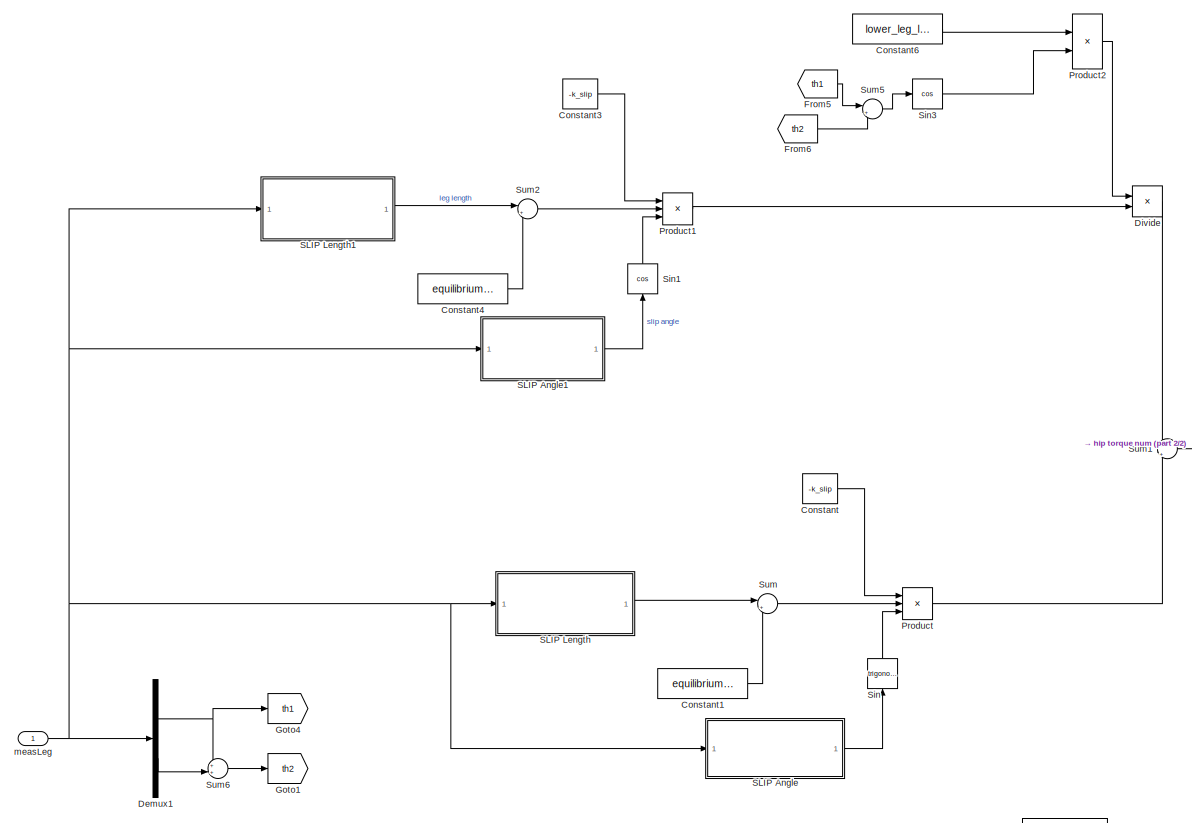
[diagram: State-Transition Diagram/Command1.SLIP/Spring/Hip Torque Calculation - part 1/2, middle left region]
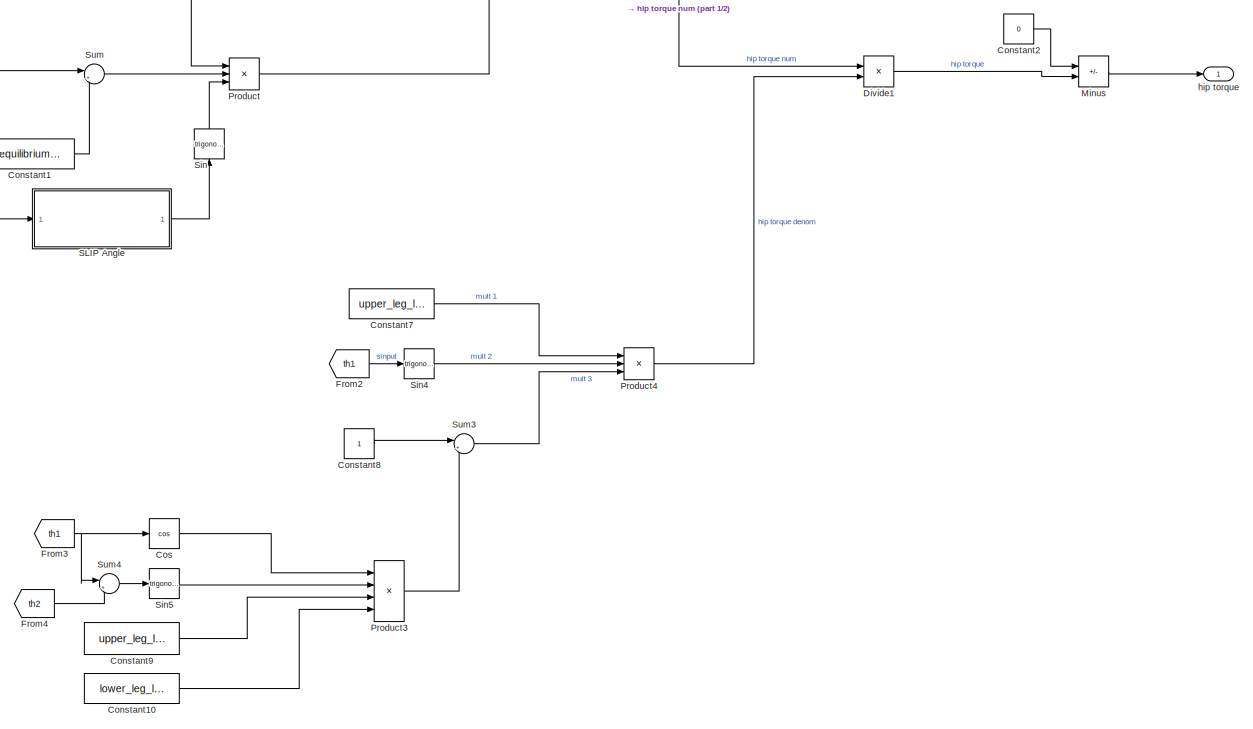
[diagram: State-Transition Diagram/Command1.SLIP/Spring/Hip Torque Calculation - part 2/2, bottom right region]
BLOCK [SubSystem] State-Transition Diagram/Command1.SLIP/Spring/Hip Torque Calculation
  Ports = [1, 1]
  RequestExecContextInheritance = off
BLOCK [Constant] State-Transition Diagram/Command1.SLIP/Spring/Hip Torque Calculation/Constant
  Value = -k_slip
BLOCK [Constant] State-Transition Diagram/Command1.SLIP/Spring/Hip Torque Calculation/Constant1
  Value = equilibrium_length
BLOCK [Constant] State-Transition Diagram/Command1.SLIP/Spring/Hip Torque Calculation/Constant10
  Value = lower_leg_length
BLOCK [Constant] State-Transition Diagram/Command1.SLIP/Spring/Hip Torque Calculation/Constant2
  Value = 0
BLOCK [Constant] State-Transition Diagram/Command1.SLIP/Spring/Hip Torque Calculation/Constant3
  Value = -k_slip
BLOCK [Constant] State-Transition Diagram/Command1.SLIP/Spring/Hip Torque Calculation/Constant4
  Value = equilibrium_length
BLOCK [Constant] State-Transition Diagram/Command1.SLIP/Spring/Hip Torque Calculation/Constant6
  Value = lower_leg_length
BLOCK [Constant] State-Transition Diagram/Command1.SLIP/Spring/Hip Torque Calculation/Constant7
  Value = upper_leg_length
BLOCK [Constant] State-Transition Diagram/Command1.SLIP/Spring/Hip Torque Calculation/Constant8
BLOCK [Constant] State-Transition Diagram/Command1.SLIP/Spring/Hip Torque Calculation/Constant9
  Value = upper_leg_length
BLOCK [Trigonometry] State-Transition Diagram/Command1.SLIP/Spring/Hip Torque Calculation/Cos
  Operator = cos
  Ports = [1, 1]
BLOCK [Demux] State-Transition Diagram/Command1.SLIP/Spring/Hip Torque Calculation/Demux1
  Outputs = 2
  Ports = [1, 2]
BLOCK [Product] State-Transition Diagram/Command1.SLIP/Spring/Hip Torque Calculation/Divide
  Inputs = /*
  Ports = [2, 1]
BLOCK [Product] State-Transition Diagram/Command1.SLIP/Spring/Hip Torque Calculation/Divide1
  Inputs = */
  Ports = [2, 1]
BLOCK [From] State-Transition Diagram/Command1.SLIP/Spring/Hip Torque Calculation/From2
  GotoTag = th1
BLOCK [From] State-Transition Diagram/Command1.SLIP/Spring/Hip Torque Calculation/From3
  GotoTag = th1
BLOCK [From] State-Transition Diagram/Command1.SLIP/Spring/Hip Torque Calculation/From4
  GotoTag = th2
BLOCK [From] State-Transition Diagram/Command1.SLIP/Spring/Hip Torque Calculation/From5
  GotoTag = th1
BLOCK [From] State-Transition Diagram/Command1.SLIP/Spring/Hip Torque Calculation/From6
  GotoTag = th2
BLOCK [Goto] State-Transition Diagram/Command1.SLIP/Spring/Hip Torque Calculation/Goto1
  GotoTag = th2
BLOCK [Goto] State-Transition Diagram/Command1.SLIP/Spring/Hip Torque Calculation/Goto4
  GotoTag = th1
BLOCK [Sum] State-Transition Diagram/Command1.SLIP/Spring/Hip Torque Calculation/Minus
  IconShape = rectangular
  Inputs = +-
  Ports = [2, 1]
BLOCK [Product] State-Transition Diagram/Command1.SLIP/Spring/Hip Torque Calculation/Product
  Inputs = 3
  Ports = [3, 1]
BLOCK [Product] State-Transition Diagram/Command1.SLIP/Spring/Hip Torque Calculation/Product1
  Inputs = 3
  Ports = [3, 1]
BLOCK [Product] State-Transition Diagram/Command1.SLIP/Spring/Hip Torque Calculation/Product2
  Ports = [2, 1]
BLOCK [Product] State-Transition Diagram/Command1.SLIP/Spring/Hip Torque Calculation/Product3
  Inputs = 4
  Ports = [4, 1]
BLOCK [Product] State-Transition Diagram/Command1.SLIP/Spring/Hip Torque Calculation/Product4
  Inputs = 3
  Ports = [3, 1]
BLOCK [SubSystem] State-Transition Diagram/Command1.SLIP/Spring/Hip Torque Calculation/SLIP Angle
  Ports = [1, 1]
  RequestExecContextInheritance = off
BLOCK [Constant] State-Transition Diagram/Command1.SLIP/Spring/Hip Torque Calculation/SLIP Angle/Constant10
  Value = upper_leg_length
BLOCK [Constant] State-Transition Diagram/Command1.SLIP/Spring/Hip Torque Calculation/SLIP Angle/Constant3
  Value = lower_leg_length
BLOCK [Constant] State-Transition Diagram/Command1.SLIP/Spring/Hip Torque Calculation/SLIP Angle/Constant4
  Value = upper_leg_length
BLOCK [Constant] State-Transition Diagram/Command1.SLIP/Spring/Hip Torque Calculation/SLIP Angle/Constant9
  Value = lower_leg_length
BLOCK [Demux] State-Transition Diagram/Command1.SLIP/Spring/Hip Torque Calculation/SLIP Angle/Demux
  Outputs = 2
  Ports = [1, 2]
BLOCK [Product] State-Transition Diagram/Command1.SLIP/Spring/Hip Torque Calculation/SLIP Angle/Divide
  Inputs = */
  Ports = [2, 1]
BLOCK [From] State-Transition Diagram/Command1.SLIP/Spring/Hip Torque Calculation/SLIP Angle/From1
  GotoTag = th2
BLOCK [From] State-Transition Diagram/Command1.SLIP/Spring/Hip Torque Calculation/SLIP Angle/From6
  GotoTag = th1
BLOCK [From] State-Transition Diagram/Command1.SLIP/Spring/Hip Torque Calculation/SLIP Angle/From7
  GotoTag = th2
BLOCK [From] State-Transition Diagram/Command1.SLIP/Spring/Hip Torque Calculation/SLIP Angle/From8
  GotoTag = th1
BLOCK [Goto] State-Transition Diagram/Command1.SLIP/Spring/Hip Torque Calculation/SLIP Angle/Goto
  GotoTag = th2
BLOCK [Goto] State-Transition Diagram/Command1.SLIP/Spring/Hip Torque Calculation/SLIP Angle/Goto1
  GotoTag = th1
BLOCK [Outport] State-Transition Diagram/Command1.SLIP/Spring/Hip Torque Calculation/SLIP Angle/Out1
BLOCK [Product] State-Transition Diagram/Command1.SLIP/Spring/Hip Torque Calculation/SLIP Angle/Product1
  Ports = [2, 1]
BLOCK [Product] State-Transition Diagram/Command1.SLIP/Spring/Hip Torque Calculation/SLIP Angle/Product2
  Ports = [2, 1]
BLOCK [Product] State-Transition Diagram/Command1.SLIP/Spring/Hip Torque Calculation/SLIP Angle/Product7
  Ports = [2, 1]
BLOCK [Product] State-Transition Diagram/Command1.SLIP/Spring/Hip Torque Calculation/SLIP Angle/Product8
  Ports = [2, 1]
BLOCK [Trigonometry] State-Transition Diagram/Command1.SLIP/Spring/Hip Torque Calculation/SLIP Angle/Sin1
  Ports = [1, 1]
BLOCK [Trigonometry] State-Transition Diagram/Command1.SLIP/Spring/Hip Torque Calculation/SLIP Angle/Sin6
  Ports = [1, 1]
BLOCK [Trigonometry] State-Transition Diagram/Command1.SLIP/Spring/Hip Torque Calculation/SLIP Angle/Sin7
  Operator = cos
  Ports = [1, 1]
BLOCK [Trigonometry] State-Transition Diagram/Command1.SLIP/Spring/Hip Torque Calculation/SLIP Angle/Sin8
  Operator = cos
  Ports = [1, 1]
BLOCK [Sum] State-Transition Diagram/Command1.SLIP/Spring/Hip Torque Calculation/SLIP Angle/Sum
  Inputs = ++|
  Ports = [2, 1]
BLOCK [Sum] State-Transition Diagram/Command1.SLIP/Spring/Hip Torque Calculation/SLIP Angle/Sum1
  Inputs = +|+
  Ports = [2, 1]
BLOCK [Sum] State-Transition Diagram/Command1.SLIP/Spring/Hip Torque Calculation/SLIP Angle/Sum2
  Inputs = +|+
  Ports = [2, 1]
BLOCK [Trigonometry] State-Transition Diagram/Command1.SLIP/Spring/Hip Torque Calculation/SLIP Angle/Trigonometric Function
  Operator = atan
  Ports = [1, 1]
BLOCK [Inport] State-Transition Diagram/Command1.SLIP/Spring/Hip Torque Calculation/SLIP Angle/measLeg
BLOCK [SubSystem] State-Transition Diagram/Command1.SLIP/Spring/Hip Torque Calculation/SLIP Angle1
  Ports = [1, 1]
  RequestExecContextInheritance = off
BLOCK [Constant] State-Transition Diagram/Command1.SLIP/Spring/Hip Torque Calculation/SLIP Angle1/Constant10
  Value = upper_leg_length
BLOCK [Constant] State-Transition Diagram/Command1.SLIP/Spring/Hip Torque Calculation/SLIP Angle1/Constant3
  Value = lower_leg_length
BLOCK [Constant] State-Transition Diagram/Command1.SLIP/Spring/Hip Torque Calculation/SLIP Angle1/Constant4
  Value = upper_leg_length
BLOCK [Constant] State-Transition Diagram/Command1.SLIP/Spring/Hip Torque Calculation/SLIP Angle1/Constant9
  Value = lower_leg_length
BLOCK [Demux] State-Transition Diagram/Command1.SLIP/Spring/Hip Torque Calculation/SLIP Angle1/Demux
  Outputs = 2
  Ports = [1, 2]
BLOCK [Product] State-Transition Diagram/Command1.SLIP/Spring/Hip Torque Calculation/SLIP Angle1/Divide
  Inputs = */
  Ports = [2, 1]
BLOCK [From] State-Transition Diagram/Command1.SLIP/Spring/Hip Torque Calculation/SLIP Angle1/From1
  GotoTag = th2
BLOCK [From] State-Transition Diagram/Command1.SLIP/Spring/Hip Torque Calculation/SLIP Angle1/From6
  GotoTag = th1
BLOCK [From] State-Transition Diagram/Command1.SLIP/Spring/Hip Torque Calculation/SLIP Angle1/From7
  GotoTag = th2
BLOCK [From] State-Transition Diagram/Command1.SLIP/Spring/Hip Torque Calculation/SLIP Angle1/From8
  GotoTag = th1
BLOCK [Goto] State-Transition Diagram/Command1.SLIP/Spring/Hip Torque Calculation/SLIP Angle1/Goto
  GotoTag = th2
BLOCK [Goto] State-Transition Diagram/Command1.SLIP/Spring/Hip Torque Calculation/SLIP Angle1/Goto1
  GotoTag = th1
BLOCK [Outport] State-Transition Diagram/Command1.SLIP/Spring/Hip Torque Calculation/SLIP Angle1/Out1
BLOCK [Product] State-Transition Diagram/Command1.SLIP/Spring/Hip Torque Calculation/SLIP Angle1/Product1
  Ports = [2, 1]
BLOCK [Product] State-Transition Diagram/Command1.SLIP/Spring/Hip Torque Calculation/SLIP Angle1/Product2
  Ports = [2, 1]
BLOCK [Product] State-Transition Diagram/Command1.SLIP/Spring/Hip Torque Calculation/SLIP Angle1/Product7
  Ports = [2, 1]
BLOCK [Product] State-Transition Diagram/Command1.SLIP/Spring/Hip Torque Calculation/SLIP Angle1/Product8
  Ports = [2, 1]
BLOCK [Trigonometry] State-Transition Diagram/Command1.SLIP/Spring/Hip Torque Calculation/SLIP Angle1/Sin1
  Ports = [1, 1]
BLOCK [Trigonometry] State-Transition Diagram/Command1.SLIP/Spring/Hip Torque Calculation/SLIP Angle1/Sin6
  Ports = [1, 1]
BLOCK [Trigonometry] State-Transition Diagram/Command1.SLIP/Spring/Hip Torque Calculation/SLIP Angle1/Sin7
  Operator = cos
  Ports = [1, 1]
BLOCK [Trigonometry] State-Transition Diagram/Command1.SLIP/Spring/Hip Torque Calculation/SLIP Angle1/Sin8
  Operator = cos
  Ports = [1, 1]
BLOCK [Sum] State-Transition Diagram/Command1.SLIP/Spring/Hip Torque Calculation/SLIP Angle1/Sum
  Inputs = ++|
  Ports = [2, 1]
BLOCK [Sum] State-Transition Diagram/Command1.SLIP/Spring/Hip Torque Calculation/SLIP Angle1/Sum1
  Inputs = +|+
  Ports = [2, 1]
BLOCK [Sum] State-Transition Diagram/Command1.SLIP/Spring/Hip Torque Calculation/SLIP Angle1/Sum2
  Inputs = +|+
  Ports = [2, 1]
BLOCK [Trigonometry] State-Transition Diagram/Command1.SLIP/Spring/Hip Torque Calculation/SLIP Angle1/Trigonometric Function
  Operator = atan
  Ports = [1, 1]
BLOCK [Inport] State-Transition Diagram/Command1.SLIP/Spring/Hip Torque Calculation/SLIP Angle1/measLeg
BLOCK [SubSystem] State-Transition Diagram/Command1.SLIP/Spring/Hip Torque Calculation/SLIP Length
  Ports = [1, 1]
  RequestExecContextInheritance = off
BLOCK [Constant] State-Transition Diagram/Command1.SLIP/Spring/Hip Torque Calculation/SLIP Length/Constant5
  Value = lower_leg_length
BLOCK [Constant] State-Transition Diagram/Command1.SLIP/Spring/Hip Torque Calculation/SLIP Length/Constant6
  Value = upper_leg_length
BLOCK [Constant] State-Transition Diagram/Command1.SLIP/Spring/Hip Torque Calculation/SLIP Length/Constant7
  Value = lower_leg_length
BLOCK [Constant] State-Transition Diagram/Command1.SLIP/Spring/Hip Torque Calculation/SLIP Length/Constant8
  Value = upper_leg_length
BLOCK [Demux] State-Transition Diagram/Command1.SLIP/Spring/Hip Torque Calculation/SLIP Length/Demux
  Outputs = 2
  Ports = [1, 2]
BLOCK [From] State-Transition Diagram/Command1.SLIP/Spring/Hip Torque Calculation/SLIP Length/From2
  GotoTag = th2
BLOCK [From] State-Transition Diagram/Command1.SLIP/Spring/Hip Torque Calculation/SLIP Length/From3
  GotoTag = th1
BLOCK [From] State-Transition Diagram/Command1.SLIP/Spring/Hip Torque Calculation/SLIP Length/From4
  GotoTag = th2
BLOCK [From] State-Transition Diagram/Command1.SLIP/Spring/Hip Torque Calculation/SLIP Length/From5
  GotoTag = th1
BLOCK [Goto] State-Transition Diagram/Command1.SLIP/Spring/Hip Torque Calculation/SLIP Length/Goto
  GotoTag = th2
BLOCK [Goto] State-Transition Diagram/Command1.SLIP/Spring/Hip Torque Calculation/SLIP Length/Goto1
  GotoTag = th1
BLOCK [Product] State-Transition Diagram/Command1.SLIP/Spring/Hip Torque Calculation/SLIP Length/Product3
  Ports = [2, 1]
BLOCK [Product] State-Transition Diagram/Command1.SLIP/Spring/Hip Torque Calculation/SLIP Length/Product4
  Ports = [2, 1]
BLOCK [Product] State-Transition Diagram/Command1.SLIP/Spring/Hip Torque Calculation/SLIP Length/Product5
  Ports = [2, 1]
BLOCK [Product] State-Transition Diagram/Command1.SLIP/Spring/Hip Torque Calculation/SLIP Length/Product6
  Ports = [2, 1]
BLOCK [Trigonometry] State-Transition Diagram/Command1.SLIP/Spring/Hip Torque Calculation/SLIP Length/Sin2
  Ports = [1, 1]
BLOCK [Trigonometry] State-Transition Diagram/Command1.SLIP/Spring/Hip Torque Calculation/SLIP Length/Sin3
  Ports = [1, 1]
BLOCK [Trigonometry] State-Transition Diagram/Command1.SLIP/Spring/Hip Torque Calculation/SLIP Length/Sin4
  Operator = cos
  Ports = [1, 1]
BLOCK [Trigonometry] State-Transition Diagram/Command1.SLIP/Spring/Hip Torque Calculation/SLIP Length/Sin5
  Operator = cos
  Ports = [1, 1]
BLOCK [Sqrt] State-Transition Diagram/Command1.SLIP/Spring/Hip Torque Calculation/SLIP Length/Square Root1
BLOCK [Math] State-Transition Diagram/Command1.SLIP/Spring/Hip Torque Calculation/SLIP Length/Square2
  Operator = square
  Ports = [1, 1]
BLOCK [Math] State-Transition Diagram/Command1.SLIP/Spring/Hip Torque Calculation/SLIP Length/Square3
  Operator = square
  Ports = [1, 1]
BLOCK [Sum] State-Transition Diagram/Command1.SLIP/Spring/Hip Torque Calculation/SLIP Length/Sum
  Inputs = ++|
  Ports = [2, 1]
BLOCK [Sum] State-Transition Diagram/Command1.SLIP/Spring/Hip Torque Calculation/SLIP Length/Sum6
  Inputs = +|+
  Ports = [2, 1]
BLOCK [Sum] State-Transition Diagram/Command1.SLIP/Spring/Hip Torque Calculation/SLIP Length/Sum7
  Inputs = +|+
  Ports = [2, 1]
BLOCK [Sum] State-Transition Diagram/Command1.SLIP/Spring/Hip Torque Calculation/SLIP Length/Sum8
  Inputs = +|+
  Ports = [2, 1]
BLOCK [Outport] State-Transition Diagram/Command1.SLIP/Spring/Hip Torque Calculation/SLIP Length/current length
BLOCK [Inport] State-Transition Diagram/Command1.SLIP/Spring/Hip Torque Calculation/SLIP Length/measLeg
BLOCK [SubSystem] State-Transition Diagram/Command1.SLIP/Spring/Hip Torque Calculation/SLIP Length1
  Ports = [1, 1]
  RequestExecContextInheritance = off
BLOCK [Constant] State-Transition Diagram/Command1.SLIP/Spring/Hip Torque Calculation/SLIP Length1/Constant5
  Value = lower_leg_length
BLOCK [Constant] State-Transition Diagram/Command1.SLIP/Spring/Hip Torque Calculation/SLIP Length1/Constant6
  Value = upper_leg_length
BLOCK [Constant] State-Transition Diagram/Command1.SLIP/Spring/Hip Torque Calculation/SLIP Length1/Constant7
  Value = lower_leg_length
BLOCK [Constant] State-Transition Diagram/Command1.SLIP/Spring/Hip Torque Calculation/SLIP Length1/Constant8
  Value = upper_leg_length
BLOCK [Demux] State-Transition Diagram/Command1.SLIP/Spring/Hip Torque Calculation/SLIP Length1/Demux
  Outputs = 2
  Ports = [1, 2]
BLOCK [From] State-Transition Diagram/Command1.SLIP/Spring/Hip Torque Calculation/SLIP Length1/From2
  GotoTag = th2
BLOCK [From] State-Transition Diagram/Command1.SLIP/Spring/Hip Torque Calculation/SLIP Length1/From3
  GotoTag = th1
BLOCK [From] State-Transition Diagram/Command1.SLIP/Spring/Hip Torque Calculation/SLIP Length1/From4
  GotoTag = th2
BLOCK [From] State-Transition Diagram/Command1.SLIP/Spring/Hip Torque Calculation/SLIP Length1/From5
  GotoTag = th1
BLOCK [Goto] State-Transition Diagram/Command1.SLIP/Spring/Hip Torque Calculation/SLIP Length1/Goto
  GotoTag = th2
BLOCK [Goto] State-Transition Diagram/Command1.SLIP/Spring/Hip Torque Calculation/SLIP Length1/Goto1
  GotoTag = th1
BLOCK [Product] State-Transition Diagram/Command1.SLIP/Spring/Hip Torque Calculation/SLIP Length1/Product3
  Ports = [2, 1]
BLOCK [Product] State-Transition Diagram/Command1.SLIP/Spring/Hip Torque Calculation/SLIP Length1/Product4
  Ports = [2, 1]
BLOCK [Product] State-Transition Diagram/Command1.SLIP/Spring/Hip Torque Calculation/SLIP Length1/Product5
  Ports = [2, 1]
BLOCK [Product] State-Transition Diagram/Command1.SLIP/Spring/Hip Torque Calculation/SLIP Length1/Product6
  Ports = [2, 1]
BLOCK [Trigonometry] State-Transition Diagram/Command1.SLIP/Spring/Hip Torque Calculation/SLIP Length1/Sin2
  Ports = [1, 1]
BLOCK [Trigonometry] State-Transition Diagram/Command1.SLIP/Spring/Hip Torque Calculation/SLIP Length1/Sin3
  Ports = [1, 1]
BLOCK [Trigonometry] State-Transition Diagram/Command1.SLIP/Spring/Hip Torque Calculation/SLIP Length1/Sin4
  Operator = cos
  Ports = [1, 1]
BLOCK [Trigonometry] State-Transition Diagram/Command1.SLIP/Spring/Hip Torque Calculation/SLIP Length1/Sin5
  Operator = cos
  Ports = [1, 1]
BLOCK [Sqrt] State-Transition Diagram/Command1.SLIP/Spring/Hip Torque Calculation/SLIP Length1/Square Root1
BLOCK [Math] State-Transition Diagram/Command1.SLIP/Spring/Hip Torque Calculation/SLIP Length1/Square2
  Operator = square
  Ports = [1, 1]
BLOCK [Math] State-Transition Diagram/Command1.SLIP/Spring/Hip Torque Calculation/SLIP Length1/Square3
  Operator = square
  Ports = [1, 1]
BLOCK [Sum] State-Transition Diagram/Command1.SLIP/Spring/Hip Torque Calculation/SLIP Length1/Sum
  Inputs = ++|
  Ports = [2, 1]
BLOCK [Sum] State-Transition Diagram/Command1.SLIP/Spring/Hip Torque Calculation/SLIP Length1/Sum6
  Inputs = +|+
  Ports = [2, 1]
BLOCK [Sum] State-Transition Diagram/Command1.SLIP/Spring/Hip Torque Calculation/SLIP Length1/Sum7
  Inputs = +|+
  Ports = [2, 1]
BLOCK [Sum] State-Transition Diagram/Command1.SLIP/Spring/Hip Torque Calculation/SLIP Length1/Sum8
  Inputs = +|+
  Ports = [2, 1]
BLOCK [Outport] State-Transition Diagram/Command1.SLIP/Spring/Hip Torque Calculation/SLIP Length1/current length
BLOCK [Inport] State-Transition Diagram/Command1.SLIP/Spring/Hip Torque Calculation/SLIP Length1/measLeg
BLOCK [Trigonometry] State-Transition Diagram/Command1.SLIP/Spring/Hip Torque Calculation/Sin
  NameLocation = right
  Ports = [1, 1]
BLOCK [Trigonometry] State-Transition Diagram/Command1.SLIP/Spring/Hip Torque Calculation/Sin1
  NameLocation = right
  Operator = cos
  Ports = [1, 1]
BLOCK [Trigonometry] State-Transition Diagram/Command1.SLIP/Spring/Hip Torque Calculation/Sin3
  Operator = cos
  Ports = [1, 1]
BLOCK [Trigonometry] State-Transition Diagram/Command1.SLIP/Spring/Hip Torque Calculation/Sin4
  Ports = [1, 1]
BLOCK [Trigonometry] State-Transition Diagram/Command1.SLIP/Spring/Hip Torque Calculation/Sin5
  Ports = [1, 1]
BLOCK [Sum] State-Transition Diagram/Command1.SLIP/Spring/Hip Torque Calculation/Sum
  Inputs = |+-
  Ports = [2, 1]
BLOCK [Sum] State-Transition Diagram/Command1.SLIP/Spring/Hip Torque Calculation/Sum1
  Inputs = -|+
  Ports = [2, 1]
BLOCK [Sum] State-Transition Diagram/Command1.SLIP/Spring/Hip Torque Calculation/Sum2
  Inputs = |+-
  Ports = [2, 1]
BLOCK [Sum] State-Transition Diagram/Command1.SLIP/Spring/Hip Torque Calculation/Sum3
  Inputs = |++
  Ports = [2, 1]
BLOCK [Sum] State-Transition Diagram/Command1.SLIP/Spring/Hip Torque Calculation/Sum4
  Inputs = |++
  Ports = [2, 1]
BLOCK [Sum] State-Transition Diagram/Command1.SLIP/Spring/Hip Torque Calculation/Sum5
  Inputs = |++
  Ports = [2, 1]
BLOCK [Sum] State-Transition Diagram/Command1.SLIP/Spring/Hip Torque Calculation/Sum6
  Inputs = ++|
  Ports = [2, 1]
BLOCK [Outport] State-Transition Diagram/Command1.SLIP/Spring/Hip Torque Calculation/hip torque
BLOCK [Inport] State-Transition Diagram/Command1.SLIP/Spring/Hip Torque Calculation/measLeg
BLOCK [SubSystem] State-Transition Diagram/Command1.SLIP/Spring/Knee Torque Calculation
  Ports = [2, 1]
  RequestExecContextInheritance = off
BLOCK [Constant] State-Transition Diagram/Command1.SLIP/Spring/Knee Torque Calculation/Constant
  Value = equilibrium_length
BLOCK [Constant] State-Transition Diagram/Command1.SLIP/Spring/Knee Torque Calculation/Constant1
  Value = -k_slip
BLOCK [Constant] State-Transition Diagram/Command1.SLIP/Spring/Knee Torque Calculation/Constant3
  Value = upper_leg_length
BLOCK [Constant] State-Transition Diagram/Command1.SLIP/Spring/Knee Torque Calculation/Constant4
  Value = lower_leg_length
BLOCK [Trigonometry] State-Transition Diagram/Command1.SLIP/Spring/Knee Torque Calculation/Cos
  Operator = cos
  Ports = [1, 1]
BLOCK [Trigonometry] State-Transition Diagram/Command1.SLIP/Spring/Knee Torque Calculation/Cos1
  Operator = cos
  Ports = [1, 1]
BLOCK [Trigonometry] State-Transition Diagram/Command1.SLIP/Spring/Knee Torque Calculation/Cos2
  Operator = cos
  Ports = [1, 1]
BLOCK [Demux] State-Transition Diagram/Command1.SLIP/Spring/Knee Torque Calculation/Demux
  Outputs = 2
  Ports = [1, 2]
BLOCK [Product] State-Transition Diagram/Command1.SLIP/Spring/Knee Torque Calculation/Divide
  Inputs = */
  Ports = [2, 1]
BLOCK [From] State-Transition Diagram/Command1.SLIP/Spring/Knee Torque Calculation/From
  GotoTag = th1
BLOCK [From] State-Transition Diagram/Command1.SLIP/Spring/Knee Torque Calculation/From3
  GotoTag = th1
BLOCK [From] State-Transition Diagram/Command1.SLIP/Spring/Knee Torque Calculation/From4
  GotoTag = th2
BLOCK [Goto] State-Transition Diagram/Command1.SLIP/Spring/Knee Torque Calculation/Goto1
  GotoTag = th2
BLOCK [Goto] State-Transition Diagram/Command1.SLIP/Spring/Knee Torque Calculation/Goto4
  GotoTag = th1
BLOCK [Product] State-Transition Diagram/Command1.SLIP/Spring/Knee Torque Calculation/Product
  Inputs = 3
  Ports = [3, 1]
BLOCK [Product] State-Transition Diagram/Command1.SLIP/Spring/Knee Torque Calculation/Product1
  Inputs = 3
  Ports = [3, 1]
BLOCK [Product] State-Transition Diagram/Command1.SLIP/Spring/Knee Torque Calculation/Product2
  Ports = [2, 1]
BLOCK [SubSystem] State-Transition Diagram/Command1.SLIP/Spring/Knee Torque Calculation/SLIP Angle1
  Ports = [1, 1]
  RequestExecContextInheritance = off
BLOCK [Constant] State-Transition Diagram/Command1.SLIP/Spring/Knee Torque Calculation/SLIP Angle1/Constant10
  Value = upper_leg_length
BLOCK [Constant] State-Transition Diagram/Command1.SLIP/Spring/Knee Torque Calculation/SLIP Angle1/Constant3
  Value = lower_leg_length
BLOCK [Constant] State-Transition Diagram/Command1.SLIP/Spring/Knee Torque Calculation/SLIP Angle1/Constant4
  Value = upper_leg_length
BLOCK [Constant] State-Transition Diagram/Command1.SLIP/Spring/Knee Torque Calculation/SLIP Angle1/Constant9
  Value = lower_leg_length
BLOCK [Demux] State-Transition Diagram/Command1.SLIP/Spring/Knee Torque Calculation/SLIP Angle1/Demux
  Outputs = 2
  Ports = [1, 2]
BLOCK [Product] State-Transition Diagram/Command1.SLIP/Spring/Knee Torque Calculation/SLIP Angle1/Divide
  Inputs = */
  Ports = [2, 1]
BLOCK [From] State-Transition Diagram/Command1.SLIP/Spring/Knee Torque Calculation/SLIP Angle1/From1
  GotoTag = th2
BLOCK [From] State-Transition Diagram/Command1.SLIP/Spring/Knee Torque Calculation/SLIP Angle1/From6
  GotoTag = th1
BLOCK [From] State-Transition Diagram/Command1.SLIP/Spring/Knee Torque Calculation/SLIP Angle1/From7
  GotoTag = th2
BLOCK [From] State-Transition Diagram/Command1.SLIP/Spring/Knee Torque Calculation/SLIP Angle1/From8
  GotoTag = th1
BLOCK [Goto] State-Transition Diagram/Command1.SLIP/Spring/Knee Torque Calculation/SLIP Angle1/Goto2
  GotoTag = th2
BLOCK [Goto] State-Transition Diagram/Command1.SLIP/Spring/Knee Torque Calculation/SLIP Angle1/Goto3
  GotoTag = th1
BLOCK [Outport] State-Transition Diagram/Command1.SLIP/Spring/Knee Torque Calculation/SLIP Angle1/Out1
BLOCK [Product] State-Transition Diagram/Command1.SLIP/Spring/Knee Torque Calculation/SLIP Angle1/Product1
  Ports = [2, 1]
BLOCK [Product] State-Transition Diagram/Command1.SLIP/Spring/Knee Torque Calculation/SLIP Angle1/Product2
  Ports = [2, 1]
BLOCK [Product] State-Transition Diagram/Command1.SLIP/Spring/Knee Torque Calculation/SLIP Angle1/Product7
  Ports = [2, 1]
BLOCK [Product] State-Transition Diagram/Command1.SLIP/Spring/Knee Torque Calculation/SLIP Angle1/Product8
  Ports = [2, 1]
BLOCK [Trigonometry] State-Transition Diagram/Command1.SLIP/Spring/Knee Torque Calculation/SLIP Angle1/Sin1
  Ports = [1, 1]
BLOCK [Trigonometry] State-Transition Diagram/Command1.SLIP/Spring/Knee Torque Calculation/SLIP Angle1/Sin6
  Ports = [1, 1]
BLOCK [Trigonometry] State-Transition Diagram/Command1.SLIP/Spring/Knee Torque Calculation/SLIP Angle1/Sin7
  Operator = cos
  Ports = [1, 1]
BLOCK [Trigonometry] State-Transition Diagram/Command1.SLIP/Spring/Knee Torque Calculation/SLIP Angle1/Sin8
  Operator = cos
  Ports = [1, 1]
BLOCK [Sum] State-Transition Diagram/Command1.SLIP/Spring/Knee Torque Calculation/SLIP Angle1/Sum1
  Inputs = +|+
  Ports = [2, 1]
BLOCK [Sum] State-Transition Diagram/Command1.SLIP/Spring/Knee Torque Calculation/SLIP Angle1/Sum2
  Inputs = +|+
  Ports = [2, 1]
BLOCK [Sum] State-Transition Diagram/Command1.SLIP/Spring/Knee Torque Calculation/SLIP Angle1/Sum7
  Inputs = ++|
  Ports = [2, 1]
BLOCK [Trigonometry] State-Transition Diagram/Command1.SLIP/Spring/Knee Torque Calculation/SLIP Angle1/Trigonometric Function
  Operator = atan
  Ports = [1, 1]
BLOCK [Inport] State-Transition Diagram/Command1.SLIP/Spring/Knee Torque Calculation/SLIP Angle1/measLeg
BLOCK [SubSystem] State-Transition Diagram/Command1.SLIP/Spring/Knee Torque Calculation/SLIP Length1
  Ports = [1, 1]
  RequestExecContextInheritance = off
BLOCK [Constant] State-Transition Diagram/Command1.SLIP/Spring/Knee Torque Calculation/SLIP Length1/Constant5
  Value = lower_leg_length
BLOCK [Constant] State-Transition Diagram/Command1.SLIP/Spring/Knee Torque Calculation/SLIP Length1/Constant6
  Value = upper_leg_length
BLOCK [Constant] State-Transition Diagram/Command1.SLIP/Spring/Knee Torque Calculation/SLIP Length1/Constant7
  Value = lower_leg_length
BLOCK [Constant] State-Transition Diagram/Command1.SLIP/Spring/Knee Torque Calculation/SLIP Length1/Constant8
  Value = upper_leg_length
BLOCK [Demux] State-Transition Diagram/Command1.SLIP/Spring/Knee Torque Calculation/SLIP Length1/Demux
  Outputs = 2
  Ports = [1, 2]
BLOCK [From] State-Transition Diagram/Command1.SLIP/Spring/Knee Torque Calculation/SLIP Length1/From2
  GotoTag = th2
BLOCK [From] State-Transition Diagram/Command1.SLIP/Spring/Knee Torque Calculation/SLIP Length1/From3
  GotoTag = th1
BLOCK [From] State-Transition Diagram/Command1.SLIP/Spring/Knee Torque Calculation/SLIP Length1/From4
  GotoTag = th2
BLOCK [From] State-Transition Diagram/Command1.SLIP/Spring/Knee Torque Calculation/SLIP Length1/From5
  GotoTag = th1
BLOCK [Goto] State-Transition Diagram/Command1.SLIP/Spring/Knee Torque Calculation/SLIP Length1/Goto2
  GotoTag = th2
BLOCK [Goto] State-Transition Diagram/Command1.SLIP/Spring/Knee Torque Calculation/SLIP Length1/Goto3
  GotoTag = th1
BLOCK [Product] State-Transition Diagram/Command1.SLIP/Spring/Knee Torque Calculation/SLIP Length1/Product3
  Ports = [2, 1]
BLOCK [Product] State-Transition Diagram/Command1.SLIP/Spring/Knee Torque Calculation/SLIP Length1/Product4
  Ports = [2, 1]
BLOCK [Product] State-Transition Diagram/Command1.SLIP/Spring/Knee Torque Calculation/SLIP Length1/Product5
  Ports = [2, 1]
BLOCK [Product] State-Transition Diagram/Command1.SLIP/Spring/Knee Torque Calculation/SLIP Length1/Product6
  Ports = [2, 1]
BLOCK [Trigonometry] State-Transition Diagram/Command1.SLIP/Spring/Knee Torque Calculation/SLIP Length1/Sin2
  Ports = [1, 1]
BLOCK [Trigonometry] State-Transition Diagram/Command1.SLIP/Spring/Knee Torque Calculation/SLIP Length1/Sin3
  Ports = [1, 1]
BLOCK [Trigonometry] State-Transition Diagram/Command1.SLIP/Spring/Knee Torque Calculation/SLIP Length1/Sin4
  Operator = cos
  Ports = [1, 1]
BLOCK [Trigonometry] State-Transition Diagram/Command1.SLIP/Spring/Knee Torque Calculation/SLIP Length1/Sin5
  Operator = cos
  Ports = [1, 1]
BLOCK [Sqrt] State-Transition Diagram/Command1.SLIP/Spring/Knee Torque Calculation/SLIP Length1/Square Root1
BLOCK [Math] State-Transition Diagram/Command1.SLIP/Spring/Knee Torque Calculation/SLIP Length1/Square2
  Operator = square
  Ports = [1, 1]
BLOCK [Math] State-Transition Diagram/Command1.SLIP/Spring/Knee Torque Calculation/SLIP Length1/Square3
  Operator = square
  Ports = [1, 1]
BLOCK [Sum] State-Transition Diagram/Command1.SLIP/Spring/Knee Torque Calculation/SLIP Length1/Sum1
  Inputs = ++|
  Ports = [2, 1]
BLOCK [Sum] State-Transition Diagram/Command1.SLIP/Spring/Knee Torque Calculation/SLIP Length1/Sum6
  Inputs = +|+
  Ports = [2, 1]
BLOCK [Sum] State-Transition Diagram/Command1.SLIP/Spring/Knee Torque Calculation/SLIP Length1/Sum7
  Inputs = +|+
  Ports = [2, 1]
BLOCK [Sum] State-Transition Diagram/Command1.SLIP/Spring/Knee Torque Calculation/SLIP Length1/Sum8
  Inputs = +|+
  Ports = [2, 1]
BLOCK [Outport] State-Transition Diagram/Command1.SLIP/Spring/Knee Torque Calculation/SLIP Length1/current length
BLOCK [Inport] State-Transition Diagram/Command1.SLIP/Spring/Knee Torque Calculation/SLIP Length1/measLeg
BLOCK [Sum] State-Transition Diagram/Command1.SLIP/Spring/Knee Torque Calculation/Sum
  Inputs = |+-
  Ports = [2, 1]
BLOCK [Sum] State-Transition Diagram/Command1.SLIP/Spring/Knee Torque Calculation/Sum1
  Inputs = -|+
  Ports = [2, 1]
BLOCK [Sum] State-Transition Diagram/Command1.SLIP/Spring/Knee Torque Calculation/Sum4
  Inputs = |++
  Ports = [2, 1]
BLOCK [Sum] State-Transition Diagram/Command1.SLIP/Spring/Knee Torque Calculation/Sum7
  Inputs = ++|
  Ports = [2, 1]
BLOCK [Inport] State-Transition Diagram/Command1.SLIP/Spring/Knee Torque Calculation/hip torque
BLOCK [Outport] State-Transition Diagram/Command1.SLIP/Spring/Knee Torque Calculation/knee torque
BLOCK [Inport] State-Transition Diagram/Command1.SLIP/Spring/Knee Torque Calculation/measLeg
  Port = 2
BLOCK [Outport] State-Transition Diagram/Command1.SLIP/Spring/Machine_State
  Port = 3
BLOCK [Saturate] State-Transition Diagram/Command1.SLIP/Spring/Saturation
  LowerLimit = -max_torque
  UpperLimit = max_torque
BLOCK [Saturate] State-Transition Diagram/Command1.SLIP/Spring/Saturation1
  LowerLimit = -max_torque
  UpperLimit = max_torque
BLOCK [Outport] State-Transition Diagram/Command1.SLIP/Spring/T1
BLOCK [Outport] State-Transition Diagram/Command1.SLIP/Spring/T2
  Port = 2
BLOCK [Inport] State-Transition Diagram/Command1.SLIP/Spring/measLeg
BLOCK [Outport] State-Transition Diagram/Command1.SLIP/T1
  Port = 3
BLOCK [Outport] State-Transition Diagram/Command1.SLIP/T2
  Port = 4
BLOCK [SubSystem] State-Transition Diagram/Command1.SLIP/Unload
  Ports = [0, 3, 0, 0, 0, 0, 0, 1]
  PreDeleteFcn = Stateflow.SLINSF.SimulinkMan.removePreDeleteFcn
  RequestExecContextInheritance = off
  UndoDeleteFcn = Stateflow.SLINSF.SimulinkMan.restorePreDeleteFcn
BLOCK [ActionPort] State-Transition Diagram/Command1.SLIP/Unload/Action Port
  CopyFcn = Stateflow.SLINSF.SimulinkMan.removeBlockPreDeleteFcn
  PreDeleteFcn = Stateflow.SLINSF.SimulinkMan.unsafePredeleteFcn
BLOCK [Constant] State-Transition Diagram/Command1.SLIP/Unload/Constant
  Value = 0
  VectorParams1D = off
BLOCK [Constant] State-Transition Diagram/Command1.SLIP/Unload/Constant1
  Value = 0
  VectorParams1D = off
BLOCK [Constant] State-Transition Diagram/Command1.SLIP/Unload/Constant2
  Value = 5
BLOCK [Outport] State-Transition Diagram/Command1.SLIP/Unload/Machine_State
  Port = 3
  SampleTime = [0, 1]
BLOCK [Outport] State-Transition Diagram/Command1.SLIP/Unload/T1
  SampleTime = [0, 1]
BLOCK [Outport] State-Transition Diagram/Command1.SLIP/Unload/T2
  Port = 2
  SampleTime = [0, 1]
BLOCK [Inport] State-Transition Diagram/Command1.SLIP/Xd
  Port = 2
BLOCK [Inport] State-Transition Diagram/Command1.SLIP/measLeg
BLOCK [Outport] State-Transition Diagram/Command1.SLIP/n
  Port = 2
BLOCK [Outport] State-Transition Diagram/Kd1
  Port = 11
BLOCK [Outport] State-Transition Diagram/Kd2
  Port = 12
BLOCK [Outport] State-Transition Diagram/Kp1
  Port = 9
BLOCK [Outport] State-Transition Diagram/Kp2
  Port = 10
BLOCK [Outport] State-Transition Diagram/MachineState
  Port = 2
BLOCK [Outport] State-Transition Diagram/T1
  Port = 7
BLOCK [Outport] State-Transition Diagram/T2
  Port = 8
BLOCK [Inport] State-Transition Diagram/Xd
  Port = 3
BLOCK [Inport] State-Transition Diagram/Z
  Port = 4
BLOCK [Outport] State-Transition Diagram/c
  Port = 6
BLOCK [Inport] State-Transition Diagram/danger
BLOCK [Inport] State-Transition Diagram/isReady
  Port = 2
BLOCK [Inport] State-Transition Diagram/measLeg
  Port = 5
BLOCK [Outport] State-Transition Diagram/n
BLOCK [Outport] State-Transition Diagram/stop
  Port = 3
BLOCK [Outport] State-Transition Diagram/theta1
  Port = 4
BLOCK [Outport] State-Transition Diagram/theta2
  Port = 5
BLOCK [Stop] Stop Simulation
BLOCK [Switch] Switch
  Criteria = u2 > Threshold
  InputSameDT = off
  NameLocation = top
  SaturateOnIntegerOverflow = off
  Threshold = 1
BLOCK [Terminator] Terminator
BLOCK [Terminator] Terminator1
BLOCK [ToWorkspace] To Workspace4
  FixptAsFi = on
  MaxDataPoints = inf
  Ports = [1]
  SampleTime = -1
  VariableName = timeout
BLOCK [Constant] isReady
  Value = 4
ANNOTATION (root): State Transition Diagram
ANNOTATION (root): 8 Degree of Freedom Quadrupedal Robot Controller Robot Name: B.R.U.C.E. (Bouncing Robot Utilizing Controls Engineering)
ANNOTATION (root): Change values for Raibert, HSW, and SLIP models in Model Workspace
ANNOTATION (root): Data Stores
ANNOTATION (root): Function blocks that communicate with the actuators via CAN and hexadecimal.
ANNOTATION (root): Global Parameters:
ANNOTATION (root): HSW Parameters:
ANNOTATION (root): ID 1&2
ANNOTATION (root): Ping Encoders to Send
ANNOTATION (root): Raibert Parameters:
ANNOTATION (root): Read
ANNOTATION (root): SLIP Parameters:
ANNOTATION (root): Speedgoat IO691 Blocks
ANNOTATION (root): This rotary dial switches between the different motor modes, and controls when the leg is commanded to stand, sit, rotate, jump, and subsequently deinitiate.
ANNOTATION (root): Variable and Command GUI
ANNOTATION (root): Write Commands
ANNOTATION (root): updated
ANNOTATION ID1 Write Hip Data: Converts inputted data to an 8-bit unsigned integer
ANNOTATION ID1 Write Hip Data: Standard ID Needs to Match Can ID
ANNOTATION ID2 Write Knee Data: Standard ID Needs to Match Can ID
ANNOTATION Read All: READ KNEE
ANNOTATION Read All: Read Encoder 1
ANNOTATION Read All: Read Encoder 2
ANNOTATION Read All: Read Hip
ANNOTATION Read All: ID 1
ANNOTATION Read All: ID 2
ANNOTATION Read All: ID 3
ANNOTATION Read All: ID 4
ANNOTATION State-Transition Diagram/Command1.HSW_Controller/Flight: The hip angle is used to control the point on the ground where the foot is placed, which in turn controls the velocity of the whole unit.
ANNOTATION State-Transition Diagram/Command1.HSW_Controller/Flight: The knee controls the length of the SLIP - during flight, it extends to make the simulated spring reach its equilibrium state.
ANNOTATION State-Transition Diagram/Command1.HSW_Controller/Load: The motors do nothing in this state, to allow the machine to gain traction. If this weren't here, the machine would cycle through states as it skidded.
ANNOTATION State-Transition Diagram/Command1.HSW_Controller/Unload: Much like the load phase, the unload phase keeps the machine from cycling states as the foot skids on the ground a bit. The motors are doing nothing here.
ANNOTATION State-Transition Diagram/Command1.Raibert/Compress: The hip controls how much of a crouch the robot will get into when it hits the floor, before springing back up.
ANNOTATION State-Transition Diagram/Command1.Raibert/Compress: The knee just provides a minor constant torque to provide some resistance as it compresses.
ANNOTATION State-Transition Diagram/Command1.Raibert/Flight: The hip angle is used to contorl the point on the ground where the foot is placed, which in turn controls the velocity of the whole unit.
ANNOTATION State-Transition Diagram/Command1.Raibert/Flight: The knee just tries to return to its initial angle
ANNOTATION State-Transition Diagram/Command1.Raibert/Load: The motors do nothing in this state, to allow the machine to gain traction. If this weren't here, the machine would cycle through states as it skidded.
ANNOTATION State-Transition Diagram/Command1.Raibert/Thrust: The hip is positioned to determine the angle of the GRF - similar to the flight phase, this dictated by the velocity error.
ANNOTATION State-Transition Diagram/Command1.Raibert/Thrust: The knee does the actual jumping here, so it just applies a constant torque to give a good kick.
ANNOTATION State-Transition Diagram/Command1.Raibert/Unload: Much like the load phase, the unload phase keeps the machine from cycling states as the foot skids on the ground a bit. The motors are doing nothing here.
ANNOTATION State-Transition Diagram/Command1.SLIP/Flight: The hip angle is used to control the point on the ground where the foot is placed, which in turn controls the velocity of the whole unit.
ANNOTATION State-Transition Diagram/Command1.SLIP/Flight: The knee controls the length of the SLIP - during flight, it extends to make the simulated spring reach its equilibrium state.
ANNOTATION State-Transition Diagram/Command1.SLIP/Load: The motors do nothing in this state, to allow the machine to gain traction. If this weren't here, the machine would cycle through states as it skidded.
ANNOTATION State-Transition Diagram/Command1.SLIP/Unload: Much like the load phase, the unload phase keeps the machine from cycling states as the foot skids on the ground a bit. The motors are doing nothing here.
NET Clock:1 -> Rate Transition:1, To Workspace4:1
NET Collision Detector:1 -> Data Store Write:1, Delay2:1
LINE Constant10:1 -> Data Store Write4:1
LINE Constant1:1 -> Multiport Switch:4
LINE Constant2:1 -> Discrete-Time Integrator:1
LINE Constant3:1 -> Multiport Switch:3
LINE Constant4:1 -> Multiport Switch:5
LINE Constant5:1 -> Switch:1
LINE Constant6:1 -> Switch:3
LINE Constant7:1 -> Data Store Write2:1
LINE Constant8:1 -> Data Store Write5:1
LINE Constant9:1 -> Data Store Write3:1
LINE Constant:1 -> Multiport Switch:2
LINE Danger Detector Function:1 -> State-Transition Diagram:1
LINE Delay1:1 -> State-Transition Diagram:5
LINE Delay2:1 -> Collision Detector:1
LINE Demux2:1 -> Gain10:1
LINE Demux2:2 -> Mux7:2
LINE Demux2:3 -> Mux7:3
LINE Demux2:4 -> Gain8:1
NET Demux2:5 -> ID1 Write Hip Data:2, ID2 Write Knee Data:1, Multiport Switch:1
LINE Demux2:6 -> Gain6:1
LINE Demux2:7 -> Mux6:2
LINE Demux2:8 -> Mux6:3
LINE Demux2:9 -> Gain1:1
LINE Discrete Derivative1:1 -> Collision Detector:2
LINE Discrete Derivative:1 -> Collision Detector:3
NET Discrete-Time Integrator:1 -> Data Store Write7:1, Switch:2
LINE Enabled Subsystem/CAN Pack1:1 -> Enabled Subsystem/CAN Write1:1
LINE Enabled Subsystem/CAN Pack2:1 -> Enabled Subsystem/CAN Write2:1
NET Enabled Subsystem/Constant:1 -> Enabled Subsystem/CAN Pack1:1, Enabled Subsystem/CAN Pack2:1
LINE Gain10:1 -> Mux7:1
LINE Gain1:1 -> Mux6:4
LINE Gain6:1 -> Mux6:1
LINE Gain8:1 -> Mux7:4
LINE ID1 Write Hip Data/Byte Packing:1 -> ID1 Write Hip Data/CAN Pack1:1
LINE ID1 Write Hip Data/CAN Pack1:1 -> ID1 Write Hip Data/CAN Write1:1
LINE ID1 Write Hip Data/Command:1 -> ID1 Write Hip Data/Demux:1
LINE ID1 Write Hip Data/Constant1:1 -> ID1 Write Hip Data/Multiport Switch:3
LINE ID1 Write Hip Data/Constant2:1 -> ID1 Write Hip Data/Multiport Switch:5
LINE ID1 Write Hip Data/Constant3:1 -> ID1 Write Hip Data/floats -> bytes:2
LINE ID1 Write Hip Data/Constant:1 -> ID1 Write Hip Data/Multiport Switch:2
LINE ID1 Write Hip Data/Demux:1 -> ID1 Write Hip Data/floats -> bytes:1
LINE ID1 Write Hip Data/Demux:2 -> ID1 Write Hip Data/floats -> bytes:3
LINE ID1 Write Hip Data/Demux:3 -> ID1 Write Hip Data/floats -> bytes:4
LINE ID1 Write Hip Data/Demux:4 -> ID1 Write Hip Data/floats -> bytes:5
LINE ID1 Write Hip Data/Mode:1 -> ID1 Write Hip Data/Multiport Switch:1
LINE ID1 Write Hip Data/Multiport Switch:1 -> ID1 Write Hip Data/Byte Packing:1
LINE ID1 Write Hip Data/floats -> bytes:1 -> ID1 Write Hip Data/Multiport Switch:4
LINE ID2 Write Knee Data/Byte Packing:1 -> ID2 Write Knee Data/CAN Pack1:1
LINE ID2 Write Knee Data/CAN Pack1:1 -> ID2 Write Knee Data/CAN Write1:1
LINE ID2 Write Knee Data/Command:1 -> ID2 Write Knee Data/Demux:1
LINE ID2 Write Knee Data/Constant1:1 -> ID2 Write Knee Data/Multiport Switch:3
LINE ID2 Write Knee Data/Constant2:1 -> ID2 Write Knee Data/Multiport Switch:5
LINE ID2 Write Knee Data/Constant3:1 -> ID2 Write Knee Data/floats -> bytes:2
LINE ID2 Write Knee Data/Constant:1 -> ID2 Write Knee Data/Multiport Switch:2
LINE ID2 Write Knee Data/Demux:1 -> ID2 Write Knee Data/floats -> bytes:1
LINE ID2 Write Knee Data/Demux:2 -> ID2 Write Knee Data/floats -> bytes:3
LINE ID2 Write Knee Data/Demux:3 -> ID2 Write Knee Data/floats -> bytes:4
LINE ID2 Write Knee Data/Demux:4 -> ID2 Write Knee Data/floats -> bytes:5
LINE ID2 Write Knee Data/Mode:1 -> ID2 Write Knee Data/Multiport Switch:1
LINE ID2 Write Knee Data/Multiport Switch:1 -> ID2 Write Knee Data/Byte Packing:1
LINE ID2 Write Knee Data/floats -> bytes:1 -> ID2 Write Knee Data/Multiport Switch:4
LINE Multiport Switch:1 -> Enabled Subsystem:enable
LINE Mux1:1 -> Mux3:3
LINE Mux2:1 -> Delay1:1
LINE Mux3:1 -> Demux2:1
LINE Mux6:1 -> ID2 Write Knee Data:2
LINE Mux7:1 -> ID1 Write Hip Data:1
LINE Mux:1 -> Mux3:1
LINE Rate Transition:1 -> Data Store Write6:1
LINE Read All/CAN Read:1 -> Read All/While Iterator:1
NET Read All/CAN Read:2 -> Read All/CAN Unpack1:1, Read All/CAN Unpack2:1, Read All/CAN Unpack3:1, Read All/CAN Unpack:1
LINE Read All/CAN Unpack1:1 -> Read All/Encoder 1 to Vertical Data:1
LINE Read All/CAN Unpack1:2 -> Read All/Encoder 1 to Vertical Data:2
LINE Read All/CAN Unpack1:3 -> Read All/Terminator7:1
LINE Read All/CAN Unpack2:1 -> Read All/Encoder 2 to Vertical Data:1
LINE Read All/CAN Unpack2:2 -> Read All/Encoder 2 to Vertical Data:2
LINE Read All/CAN Unpack2:3 -> Read All/Terminator1:1
LINE Read All/CAN Unpack3:1 -> Read All/bytes -> floats1:1
LINE Read All/CAN Unpack3:2 -> Read All/bytes -> floats1:2
LINE Read All/CAN Unpack3:3 -> Read All/bytes -> floats1:3
LINE Read All/CAN Unpack3:4 -> Read All/Terminator3:1
LINE Read All/CAN Unpack3:5 -> Read All/Terminator5:1
LINE Read All/CAN Unpack:1 -> Read All/bytes -> floats:1
LINE Read All/CAN Unpack:2 -> Read All/bytes -> floats:2
LINE Read All/CAN Unpack:3 -> Read All/bytes -> floats:3
LINE Read All/CAN Unpack:4 -> Read All/Terminator6:1
LINE Read All/CAN Unpack:5 -> Read All/Terminator2:1
LINE Read All/Encoder 1 to Vertical Data:1 -> Read All/Z:1
LINE Read All/Encoder 1 to Vertical Data:2 -> Read All/Zd:1
LINE Read All/Encoder 2 to Vertical Data:1 -> Read All/X:1
LINE Read All/Encoder 2 to Vertical Data:2 -> Read All/Xd:1
LINE Read All/Gain2:1 -> Read All/th2:1
LINE Read All/Gain:1 -> Read All/th1:1
LINE Read All/While Iterator:1 -> Read All/Display:1
LINE Read All/bytes -> floats1:1 -> Read All/Gain2:1
LINE Read All/bytes -> floats1:2 -> Read All/Terminator:1
LINE Read All/bytes -> floats1:3 -> Read All/I2:1
LINE Read All/bytes -> floats:1 -> Read All/Gain:1
LINE Read All/bytes -> floats:2 -> Read All/Terminator4:1
LINE Read All/bytes -> floats:3 -> Read All/I1:1
LINE Read All:1 -> State-Transition Diagram:4
LINE Read All:2 -> State-Transition Diagram:3
NET Read All:3 -> Danger Detector Function:1, Mux2:1
NET Read All:4 -> Danger Detector Function:2, Mux2:2
LINE Read All:5 -> Discrete Derivative1:1
LINE Read All:6 -> Discrete Derivative:1
LINE Read All:7 -> Terminator:1
LINE Read All:8 -> Terminator1:1
LINE State-Transition Diagram:1 -> Display1:1
LINE State-Transition Diagram:10 -> Mux1:2
LINE State-Transition Diagram:11 -> Mux:3
LINE State-Transition Diagram:12 -> Mux1:3
LINE State-Transition Diagram:2 -> Display:1
LINE State-Transition Diagram:3 -> Stop Simulation:1
LINE State-Transition Diagram:4 -> Mux:1
LINE State-Transition Diagram:5 -> Mux1:1
LINE State-Transition Diagram:6 -> Mux3:2
LINE State-Transition Diagram:7 -> Mux:4
LINE State-Transition Diagram:8 -> Mux1:4
LINE State-Transition Diagram:9 -> Mux:2
LINE Switch:1 -> Data Store Write1:1
NET isReady:1 -> Discrete-Time Integrator:2, State-Transition Diagram:2
note: NET lines group one-source signal fan-out (src -> all destinations, sorted); 1:1 wires keep LINE
CHART Read All/Encoder 2 to Vertical Data states=1 transitions=1
  STATE_LABEL 'eML_blk_kernel()'
  STATE_LABEL 'SCRIPT:\nfunction [x, xd] = Enc2ToVert(th2Raw, thd2Raw, r, CPR)\n\nth2= th2Raw*2*pi/(4*CPR);\nthd2 = thd2Raw/1000;\n\nx = r*sin(th2);\nxd = thd2*r*cos(th2);\n\nend\n'
CHART Read All/Encoder 1 to Vertical Data states=1 transitions=1
  STATE_LABEL 'eML_blk_kernel()'
  STATE_LABEL 'SCRIPT:\nfunction [z, zd] = Enc1ToVert(th1Raw, thd1Raw, CPR, r, h)\n\nth1 = th1Raw*2*pi/(4*CPR);\nthd1 = thd1Raw*2*pi/(4*CPR);\n    \nz = r*sin(th1)+h;\nzd = thd1*r*cos(th1);\n\nend\n'
CHART State-Transition Diagram/Command1.SLIP states=5 transitions=7
  STATE_LABEL 'Flight'
  STATE_LABEL 'Unload'
  STATE_LABEL 'Load'
  STATE_LABEL 'Idle'
  STATE_LABEL 'Spring'
CHART State-Transition Diagram/Command1.Raibert states=6 transitions=8
  STATE_LABEL 'Flight'
  STATE_LABEL 'Unload'
  STATE_LABEL 'Load'
  STATE_LABEL 'Idle'
  STATE_LABEL 'Thrust'
  STATE_LABEL 'Compress'
CHART State-Transition Diagram/Command1.HSW_Controller states=5 transitions=7
  STATE_LABEL 'Flight'
  STATE_LABEL 'Unload'
  STATE_LABEL 'Load'
  STATE_LABEL 'Idle'
  STATE_LABEL 'HSW'
CHART Danger Detector Function states=1 transitions=1
  STATE_LABEL 'eML_blk_kernel()'
  STATE_LABEL 'SCRIPT:\nfunction danger = isDanger(P1, P2)\n    % Pmux position matrix radians\n    %       [p(ID1),p(ID2),p(ID3),p(IDN)]\n\n    \n    p1Max = 6; \n    %p1Min = -2;\n    p2Max = 2;\n    %p2Min = -2;\n       \n    danger = 0;\n    %if((0<sum([P1>p1Max] + [P1<p1Min] - [P1<=-95.5])) || (0<sum([P2>p2Max] + [P2<p2Min] - [P2<=-95.5])))\n    if abs(P2) > p2Max || abs(P1) > p1Max\n    \n%     if((0<sum([P1>p1Max] + [P1...<+76ch>'
CHART State-Transition Diagram/Command1.HSW_Controller/HSW/Sine Generator states=1 transitions=1
  STATE_LABEL 'eML_blk_kernel()'
  STATE_LABEL 'SCRIPT:\nfunction HSW= fcn(t,contactTime,amplitude)\n\nif contactTime ~= 0\nHSW = amplitude*sin(pi*t/contactTime);\nelse\nHSW = .3*sin(pi*t/.3);\nend\n\nend'
CHART State-Transition Diagram states=24 transitions=38
  STATE_LABEL 'Start'
  STATE_LABEL '<!DOCTYPE HTML PUBLIC "-//W3C//DTD HTML 4.0//EN" "http://www.w3.org/TR/REC-html40/strict.dtd">\n<html><head><meta name="qrichtext" content="1" /><style type="text/css">\np, li { white-space: pre-wrap; }\n</style></head><body align="left" style=" font-family:\'Helvetica\'; font-size:12px; font-weight:400; font-style:normal;">\n<p align="left" style=" margin-top:0px; margin-bottom:0px; margin-left:0px; ma...<+2165ch>'
  STATE_LABEL 'Zero\nentry:\nc = 1;'
  STATE_LABEL 'SlowDown\nentry:\n%deinitiate mode\nc = 4'
  STATE_LABEL 'Init\nentry:\nc = 2;'
  STATE_LABEL 'Command1\nentry:\nc = 3;'
  STATE_LABEL 'Raibert'
  STATE_LABEL 'Stand\nentry:\nduring:\ntheta1 = initHip;\ntheta2 = initKnee;\nKp1 = 5;\nKp2 = 5;\nKd1 = 0.4;\nKd2 = 0.4;\nT1 = 0;\nT2 = 0;'
  STATE_LABEL 'SLIP'
  STATE_LABEL 'Flight\nentry:\nduring:\ntheta1 = initHip;\ntheta2 = initKnee;\nKp1 = 4;\nKp2 = 4;\nKd1 = 0.5;\nKd2 = 0.5;'
  STATE_LABEL 'Stance\nentry:\nduring:\nT1 = 5\nT2 = 5'
  STATE_LABEL 'HSW_Controller'
  STATE_LABEL '[isReady == 3]\n{Kp1 = 0, Kp2 = 0, Kd1 = 0, Kd2 = 0}'
  STATE_LABEL '[MachineState == 0 & isReady == 2]'
  STATE_LABEL '[isReady == 6]\n{Kp1 = 0, Kp2 = 0, Kd1 = 0, Kd2 = 0}'
  STATE_LABEL '[Simscape_Transitions == true]\n{Kp1 = 0, Kp2 = 0, Kd1 = 0, Kd2 = 0}'
  STATE_LABEL '[isReady == 2]'
  STATE_LABEL '[isReady == 7]\n{Kp1 = 0, Kp2 = 0, Kd1 = 0, Kd2 = 0}'
  STATE_LABEL '[MachineState == 0 & isReady == 2]'
  STATE_LABEL '[Simscape_Transitions == false]\n{T1 = 0, T2 = 0}'
  STATE_LABEL '[isReady == 5]\n{Kp1 = 0, Kp2 = 0, Kd1 = 0, Kd2 =0}'
  STATE_LABEL '[MachineState == 0 & isReady == 2]'
  STATE_LABEL 'Raibert'
  STATE_LABEL 'Stand\nentry:\nduring:\ntheta1 = initHip;\ntheta2 = initKnee;\nKp1 = 5;\nKp2 = 5;\nKd1 = 0.4;\nKd2 = 0.4;\nT1 = 0;\nT2 = 0;'
  STATE_LABEL 'SLIP'
  STATE_LABEL 'Flight\nentry:\nduring:\ntheta1 = initHip;\ntheta2 = initKnee;\nKp1 = 4;\nKp2 = 4;\nKd1 = 0.5;\nKd2 = 0.5;'
  STATE_LABEL 'Stance\nentry:\nduring:\nT1 = 5\nT2 = 5'
  STATE_LABEL 'HSW_Controller'
  STATE_LABEL 'FinalShutdown\nentry:\nKp1 = 0;\nKp2 = 0;\ntheta1 = 0;\ntheta2 = 0;\nT1 = 0;\nT2 = 0;\nKd1 = .1;\nKd2 = .1;\n'
  STATE_LABEL 'Deinitiate\nentry:\nc = 4;'
  STATE_LABEL 'Command\nentry:\nc = 3;\np_sit = -.8;\np_stand = -1.35;\np_jump = -.4;'
  STATE_LABEL 'JumpPrep\nentry:\nto = t;\n% Left Side\ntheta1 = pc;\npo1 = theta1;\nslope1 = (pf - po1)/tstep;\ntheta2 = pc2;\npo2 = theta2;\nslope2 = (Th2Th1*pf - po2)/tstep;\n%Right Side\ntheta1r = pcr;\npo1r = theta1r;\nslope1r = (pfr - po1r)/tstep;\ntheta2r = pc2r;\npo2r = theta2r;\nslope2r = (Th2Th1*pfr - po2r)/tstep;\nduring:\ntheta1  = po1  + slope1*(t-to);\ntheta2  = po2  + slope2*(t-to);\ntheta1r = po1r + slope1r*(t-to);\nt...<+31ch>'
  STATE_LABEL 'Stand\nentry:\nto = t;\n% Left Side\ntheta1 = pc;\npo1 = theta1;\nslope1 = (pf - po1)/tstep;\ntheta2 = pc2;\npo2 = theta2;\nslope2 = (Th2Th1*pf - po2)/tstep;\n%Right Side\ntheta1r = pcr;\npo1r = theta1r;\nslope1r = (pfr - po1r)/tstep;\ntheta2r = pc2r;\npo2r = theta2r;\nslope2r = (Th2Th1*pfr - po2r)/tstep;\nduring:\ntheta1  = po1  + slope1*(t-to);\ntheta2  = po2  + slope2*(t-to);\ntheta1r = po1r + slope1r*(t-to);\nthet...<+28ch>'
  STATE_LABEL 'Jump\nentry:\nto = t;\n% Left Side\ntheta1 = pc;\npo1 = theta1;\nslope1 = (pf - po1)/tjump;\ntheta2 = pc2;\npo2 = theta2;\nslope2 = (Th2Th1*pf - po2)/tjump;\n%Right Side\ntheta1r = pcr;\npo1r = theta1r;\nslope1r = (pfr - po1r)/tjump;\ntheta2r = pc2r;\npo2r = theta2r;\nslope2r = (Th2Th1*pfr - po2r)/tjump;\nduring:\ntheta1  = po1  + slope1*(t-to);\ntheta2  = po2  + slope2*(t-to);\ntheta1r = po1r + slope1r*(t-to);\ntheta...<+27ch>'
  STATE_LABEL 'Idle\n\n'
  STATE_LABEL 'Land\nentry:\nto = t;\nKp1temp = Kp1\nKp2temp = Kp2\nKp1 = 15;\nKp2 = 15;\n% Left Side\ntheta1 = pc;\npo1 = theta1;\nslope1 = (pf - po1)/tjump;\ntheta2 = pc2;\npo2 = theta2;\nslope2 = (Th2Th1*pf - po2)/tjump;\n%Right Side\ntheta1r = pcr;\npo1r = theta1r;\nslope1r = (pfr - po1r)/tjump;\ntheta2r = pc2r;\npo2r = theta2r;\nslope2r = (Th2Th1*pfr - po2r)/tjump;\nduring:\ntheta1  = po1  + slope1*(t-to);\ntheta2  = po2  + slope...<+76ch>'
  STATE_LABEL 'LeftUp\nentry:\nto = t;\n% Left Side\ntheta1 = pc;\npo1 = theta1;\nslope1 = (pf - po1)/tstep;\ntheta2 = pc2;\npo2 = theta2;\nslope2 = (Th2Th1*pf - po2)/tstep;\n%Right Side\ntheta1r = pcr;\npo1r = theta1r;\nslope1r = (pfr - po1r)/tstep;\ntheta2r = pc2r;\npo2r = theta2r;\nslope2r = (Th2Th1*pfr - po2r)/tstep;\nduring:\ntheta1  = po1  + slope1*(t-to);\ntheta2  = po2  + slope2*(t-to);\ntheta1r = po1r + slope1r*(t-to);\nthe...<+29ch>'
  STATE_LABEL 'RightUp\nentry:\nto = t;\n% Left Side\ntheta1 = pc;\npo1 = theta1;\nslope1 = (pf - po1)/tstep;\ntheta2 = pc2;\npo2 = theta2;\nslope2 = (Th2Th1*pf - po2)/tstep;\n%Right Side\ntheta1r = pcr;\npo1r = theta1r;\nslope1r = (pfr - po1r)/tstep;\ntheta2r = pc2r;\npo2r = theta2r;\nslope2r = (Th2Th1*pfr - po2r)/tstep;\nduring:\ntheta1  = po1  + slope1*(t-to);\ntheta2  = po2  + slope2*(t-to);\ntheta1r = po1r + slope1r*(t-to);\nth...<+30ch>'
  STATE_LABEL 'Sit\nentry:\nto = t;\n% Left Side\ntheta1 = pc;\npo1 = theta1;\nslope1 = (pf - po1)/tstep;\ntheta2 = pc2;\npo2 = theta2;\nslope2 = (Th2Th1*pf - po2)/tstep;\n%Right Side\ntheta1r = pcr;\npo1r = theta1r;\nslope1r = (pfr - po1r)/tstep;\ntheta2r = pc2r;\npo2r = theta2r;\nslope2r = (Th2Th1*pfr - po2r)/tstep;\nduring:\ntheta1  = po1  + slope1*(t-to);\ntheta2  = po2  + slope2*(t-to);\ntheta1r = po1r + slope1r*(t-to);\ntheta2...<+26ch>'
  STATE_LABEL 'Idle1\nexit:\nKp1 = Kp1temp;\nKp2 = Kp2temp;\n'
CHART State-Transition Diagram/Command1.HSW_Controller/HSW/Torque Calculator states=1 transitions=1
  STATE_LABEL 'eML_blk_kernel()'
  STATE_LABEL "SCRIPT:\nfunction [T1, T2] = fcn(FGy, FGx, th1, th2, upper_leg_length, lower_leg_length)\n\n% Define shorthand for sines and cosines\ns1 = sin(th1);\nc1 = cos(th1);\ns12 = sin(th1+th2);\nc12 = cos(th1+th2);\n\n% Define Jacobian\nJ = [-upper_leg_length*s1-lower_leg_length*s12    -lower_leg_length*s12\n      upper_leg_length*c1+lower_leg_length*c12     lower_leg_length*c12];\n\n% Find Torques\nT = J'*[FGx; FGy];\n...<+68ch>"
CHART Collision Detector states=1 transitions=1
  STATE_LABEL 'eML_blk_kernel()'
  STATE_LABEL 'SCRIPT:\nfunction ground = fcn(pastground, dI1, dI2)\n\ndI1 = abs(dI1);\ndI2 = abs(dI2);\n\nmaxCur = max(dI1, dI2);\n\nif maxCur > 50\n    if pastground == true\n        ground = false;\n    else\n        ground = true;\n    end\nelse\n    ground = pastground;\nend'
CHART Read All/bytes -> floats states=1 transitions=1
  STATE_LABEL 'eML_blk_kernel()'
  STATE_LABEL 'SCRIPT:\nfunction [position, velocity, I_ff] = fcn(position, velocity, I_ff)\n\nP_MIN  =-95.5;  % [rad]\nP_MAX  = 95.5;  % [rad]\nV_MIN  =-45;    % [rad/s]\nV_MAX  = 45;    % [rad/s]\nI_MIN  =-40;    % []\nI_MAX  = 40;    % []\n\nposition = position*(P_MAX  - P_MIN)/65535+ P_MIN;\nvelocity = velocity*(V_MAX  - V_MIN)/4095 + V_MIN;\nI_ff     = I_ff*(I_MAX  - I_MIN)/4095 + I_MIN;'
CHART ID2 Write Knee Data/floats -> bytes states=1 transitions=1
  STATE_LABEL 'eML_blk_kernel()'
  STATE_LABEL 'SCRIPT:\nfunction b = fcn(position, velocity, K_p, K_d, T_ff)\n\nP_MIN  =-95.5;  % [rad]\nP_MAX  = 95.5;  % [rad]\nV_MIN  =-45;    % [rad/s] 30 to 45\nV_MAX  = 45;    % [rad/s]\nKP_MIN = 0;     % [Nm/rad]\nKP_MAX = 500;   % [Nm/rad]\nKD_MIN = 0;     % [Nm*s/rad\nKD_MAX = 5;     % [Nm*s/rad\nT_MIN  =-18;    % [Nm]\nT_MAX  = 18;    % [Nm]\n\nposition = floor((max(min(position,P_MAX) ,P_MIN)  - P_MIN )*65535/(P_MA...<+891ch>'
CHART ID1 Write Hip Data/floats -> bytes states=1 transitions=1
  STATE_LABEL 'eML_blk_kernel()'
  STATE_LABEL 'SCRIPT:\nfunction b = fcn(position, velocity, K_p, K_d, T_ff)\n\nP_MIN  =-95.5;  % [rad]\nP_MAX  = 95.5;  % [rad]\nV_MIN  =-45;    % [rad/s] 30 to 45\nV_MAX  = 45;    % [rad/s]\nKP_MIN = 0;     % [Nm/rad]\nKP_MAX = 500;   % [Nm/rad]\nKD_MIN = 0;     % [Nm*s/rad\nKD_MAX = 5;     % [Nm*s/rad\nT_MIN  =-18;    % [Nm]\nT_MAX  = 18;    % [Nm]\n\nposition = floor((max(min(position,P_MAX) ,P_MIN)  - P_MIN )*65535/(P_MA...<+891ch>'
CHART Read All/bytes -> floats1 states=1 transitions=1
  STATE_LABEL 'eML_blk_kernel()'
  STATE_LABEL 'SCRIPT:\nfunction [position, velocity, I_ff] = fcn(position, velocity, I_ff)\n\nP_MIN  =-95.5;  % [rad]\nP_MAX  = 95.5;  % [rad]\nV_MIN  =-45;    % [rad/s]\nV_MAX  = 45;    % [rad/s]\nI_MIN  =-40;    % []\nI_MAX  = 40;    % []\n\nposition = position*(P_MAX  - P_MIN)/65535+ P_MIN;\nvelocity = velocity*(V_MAX  - V_MIN)/4095 + V_MIN;\nI_ff     = I_ff*(I_MAX  - I_MIN)/4095 + I_MIN;'
CHART  states=0 transitions=0
CHART  states=0 transitions=0
CHART  states=0 transitions=0
CHART  states=0 transitions=0
CHART  states=0 transitions=0
CHART  states=0 transitions=0
CHART  states=0 transitions=0
CHART  states=0 transitions=0
CHART  states=0 transitions=0
CHART  states=0 transitions=0
CHART  states=0 transitions=0
CHART  states=0 transitions=0
CHART  states=0 transitions=0
CHART  states=0 transitions=0
